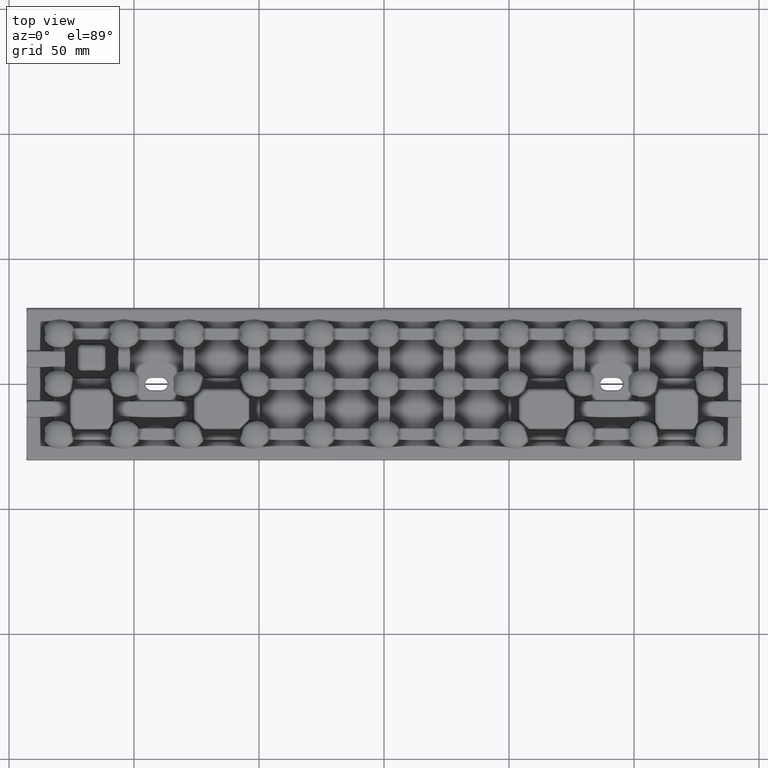
[diagram: clean part render]
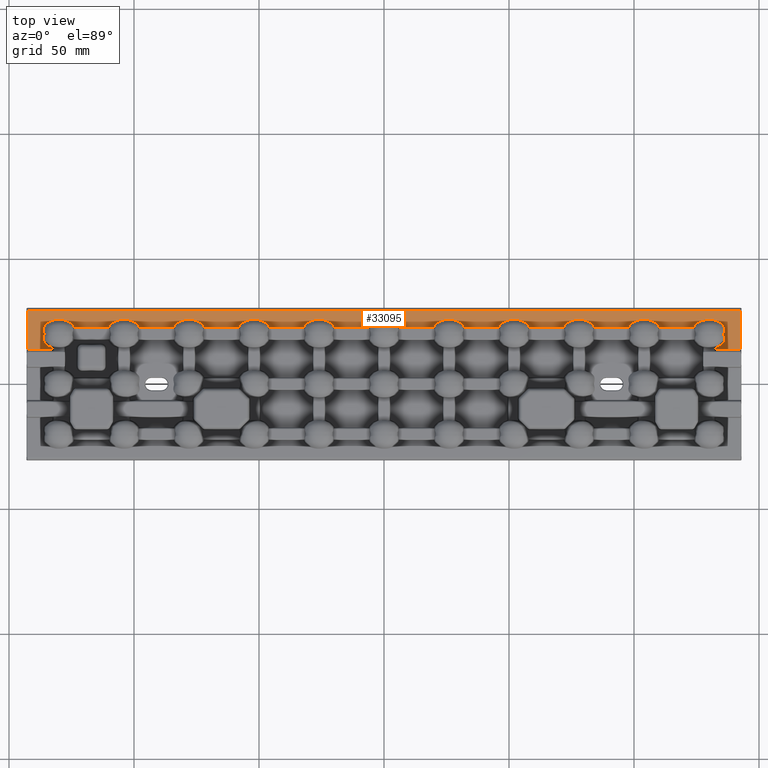
[diagram: same view with one face highlighted and labeled with its STEP entity id]
A machine part, top view. The second image highlights one B-rep face of the part: STEP entity #33095.
In plain terms, the highlighted planar face has unit normal (-0, 0, 1).
Its self-contained STEP definition (entity closure, byte-faithful):
#159 = DIRECTION ( 'NONE',  ( 1.000000000000000000, -3.844641663027053000E-016, 0.0000000000000000000 ) ) ;
#396 = CARTESIAN_POINT ( 'NONE',  ( 134.5890807931653800, 15.40667483908067800, 1.999999999999462700 ) ) ;
#418 = CARTESIAN_POINT ( 'NONE',  ( -136.2491534736721800, 18.42496305614903900, 1.999999999999801500 ) ) ;
#655 = CARTESIAN_POINT ( 'NONE',  ( 136.1422941395027800, 18.92599852830035100, 1.999999999993474100 ) ) ;
#674 = CARTESIAN_POINT ( 'NONE',  ( -133.7036661683736700, 14.90969121436089800, 2.000000000000000000 ) ) ;
#702 = CARTESIAN_POINT ( 'NONE',  ( 6.075509653499828700, 22.88562396744901800, 1.999999999999998200 ) ) ;
#829 = CARTESIAN_POINT ( 'NONE',  ( 107.8173794983486000, 25.03780424287719000, 2.000000000000000000 ) ) ;
#881 = ORIENTED_EDGE ( 'NONE', *, *, #36219, .T. ) ;
#960 = CARTESIAN_POINT ( 'NONE',  ( 2.101898965083105300, 25.64368310781740600, 2.000000000000001300 ) ) ;
#1015 = ORIENTED_EDGE ( 'NONE', *, *, #11806, .F. ) ;
#1077 = CARTESIAN_POINT ( 'NONE',  ( 101.8952171307840500, 25.64285794544110100, 2.000000000000001800 ) ) ;
#1138 = CARTESIAN_POINT ( 'NONE',  ( 132.7414221937016500, 13.77131854326629700, 2.000000000000000000 ) ) ;
#1219 = CARTESIAN_POINT ( 'NONE',  ( -3.815287526735950500, 25.03882649742065100, 1.999999999999999600 ) ) ;
#1255 = CARTESIAN_POINT ( 'NONE',  ( -128.1521017394621300, 25.70130968190581200, 1.999999999999999100 ) ) ;
#1421 = CARTESIAN_POINT ( 'NONE',  ( 82.08584800185387600, 24.90006964188271300, 1.999999999999998700 ) ) ;
#1500 = CARTESIAN_POINT ( 'NONE',  ( -135.1834138264737800, 24.13670479910281900, 2.000000000000188300 ) ) ;
#1507 = VECTOR ( 'NONE', #67939, 1000.000000000000000 ) ;
#1669 = CARTESIAN_POINT ( 'NONE',  ( 76.48413725215603200, 25.76195794472082700, 2.000000000000001300 ) ) ;
#1678 = VECTOR ( 'NONE', #159, 1000.000000000000000 ) ;
#1912 = CARTESIAN_POINT ( 'NONE',  ( 71.87528341715068300, 22.74142219370215300, 2.000000000000000000 ) ) ;
#2260 = EDGE_CURVE ( 'NONE', #65743, #44303, #62590, .T. ) ;
#2356 = CARTESIAN_POINT ( 'NONE',  ( 136.2355183708553200, 22.41646832329987800, 2.000000000000001800 ) ) ;
#2381 = CARTESIAN_POINT ( 'NONE',  ( -19.98547790453259800, 23.02461435016123300, 2.000000000000005300 ) ) ;
#2415 = CARTESIAN_POINT ( 'NONE',  ( 129.4801714825816500, 25.87062644867764000, 2.000000000000001300 ) ) ;
#2530 = LINE ( 'NONE', #45203, #17603 ) ;
#2599 = CARTESIAN_POINT ( 'NONE',  ( 131.5130212073022400, 25.78425993390715800, 2.000000000000000000 ) ) ;
#2623 = CARTESIAN_POINT ( 'NONE',  ( -24.49496288302360700, 25.76389970656171300, 2.000000000000001800 ) ) ;
#2663 = B_SPLINE_CURVE_WITH_KNOTS ( 'NONE', 3,
 ( #49878, #10018, #21431, #61338, #27191, #67038 ),
 .UNSPECIFIED., .F., .F.,
 ( 4, 2, 4 ),
 ( 0.0000000000000000000, 0.001085195773855436900, 0.002170391547710873900 ),
 .UNSPECIFIED. ) ;
#2666 = CARTESIAN_POINT ( 'NONE',  ( 123.9304156417274100, 22.90298795330230100, 2.000000000000000400 ) ) ;
#2867 = LINE ( 'NONE', #46958, #46522 ) ;
#2886 = CARTESIAN_POINT ( 'NONE',  ( -30.08417746597588800, 24.90102541659840100, 2.000000000000000000 ) ) ;
#2902 = EDGE_CURVE ( 'NONE', #65743, #33914, #60501, .T. ) ;
#3533 = B_SPLINE_CURVE_WITH_KNOTS ( 'NONE', 3,
 ( #26189, #71760, #37624, #3545, #43376, #9261, #49125, #14966, #54847, #20673, #60592, #26437, #66297, #32178, #72013, #37856, #3800, #43626, #9506, #49364, #15207, #55082, #20918, #60834, #26671, #66537, #32404, #72256, #38095, #4035, #43876, #9750, #49614, #15451, #55327, #21166 ),
 .UNSPECIFIED., .F., .F.,
 ( 4, 2, 2, 2, 2, 2, 2, 2, 2, 2, 2, 2, 2, 2, 2, 2, 2, 4 ),
 ( 0.002275996343188608800, 0.002728250509917961800, 0.003180504676647315200, 0.004085013010106021200, 0.004989521343564727200, 0.005894029677023434100, 0.006798538010482139300, 0.007703046343940846100, 0.008607554677399553000, 0.009512063010858258200, 0.01041657134431696500, 0.01132107967777567000, 0.01222558801123437700, 0.01313009634469308400, 0.01403460467815178900, 0.01493911301161049600, 0.01584362134506920100, 0.01674812967852790800 ),
 .UNSPECIFIED. ) ;
#3545 = CARTESIAN_POINT ( 'NONE',  ( 31.87143930477192600, 23.29325767552287000, 2.000000000000004400 ) ) ;
#3596 = ORIENTED_EDGE ( 'NONE', *, *, #37644, .T. ) ;
#3735 = CARTESIAN_POINT ( 'NONE',  ( -142.4984859507544300, 13.77131854326629700, 2.000000000000000000 ) ) ;
#3800 = CARTESIAN_POINT ( 'NONE',  ( 27.20471487232482100, 25.80855502716315900, 1.999999999999999600 ) ) ;
#3991 = CARTESIAN_POINT ( 'NONE',  ( 142.4984859507544300, 13.77131854326629700, 2.000000000000000000 ) ) ;
#4035 = CARTESIAN_POINT ( 'NONE',  ( 21.39877739052920100, 24.58683439160101300, 1.999999999999999600 ) ) ;
#4249 = CARTESIAN_POINT ( 'NONE',  ( 56.08584800185392500, 24.90006964188271300, 2.000000000000001300 ) ) ;
#4490 = CARTESIAN_POINT ( 'NONE',  ( 50.48413725215602500, 25.76195794472083700, 2.000000000000001300 ) ) ;
#4614 = CARTESIAN_POINT ( 'NONE',  ( -136.1422940776979300, 21.07400144673698600, 2.000000000000433900 ) ) ;
#4695 = ORIENTED_EDGE ( 'NONE', *, *, #47175, .T. ) ;
#4728 = CARTESIAN_POINT ( 'NONE',  ( 45.87528341715069000, 22.74142219370214200, 2.000000000000000000 ) ) ;
#4883 = CARTESIAN_POINT ( 'NONE',  ( 130.4999643765035800, 25.87241571720612800, 2.000000000000000400 ) ) ;
#4950 = EDGE_CURVE ( 'NONE', #64254, #33914, #32057, .T. ) ;
#5045 = VECTOR ( 'NONE', #44286, 1000.000000000000000 ) ;
#5107 = B_SPLINE_CURVE_WITH_KNOTS ( 'NONE', 3,
 ( #12004, #46144, #51902, #17684, #57612, #23460, #63326, #29191, #69013, #34885, #829, #40626, #6545, #46404, #12262, #52150, #17942, #57867, #23720, #63581, #29462, #69277, #35134, #1077, #40881, #6788, #46654, #12503, #52388, #18187, #58120, #23969, #63826, #29714, #69520, #35375 ),
 .UNSPECIFIED., .F., .F.,
 ( 4, 2, 2, 2, 2, 2, 2, 2, 2, 2, 2, 2, 2, 2, 2, 2, 2, 4 ),
 ( 0.002275996343188627400, 0.002728250509917982200, 0.003180504676647336900, 0.004085013010106037700, 0.004989521343564739400, 0.005894029677023440200, 0.006798538010482141900, 0.007703046343940843500, 0.008607554677399544300, 0.009512063010858246000, 0.01041657134431694900, 0.01132107967777564900, 0.01222558801123435100, 0.01313009634469305300, 0.01403460467815175400, 0.01493911301161045600, 0.01584362134506915600, 0.01674812967852785900 ),
 .UNSPECIFIED. ) ;
#5217 = CARTESIAN_POINT ( 'NONE',  ( 0.0000000000000000000, 13.77131854326629700, 2.000000000000000000 ) ) ;
#5281 = ORIENTED_EDGE ( 'NONE', *, *, #22242, .F. ) ;
#5458 = VERTEX_POINT ( 'NONE', #6594 ) ;
#6117 = CARTESIAN_POINT ( 'NONE',  ( 135.1988268364245600, 15.88518975005947500, 2.000000000000009800 ) ) ;
#6132 = EDGE_CURVE ( 'NONE', #64254, #36699, #45102, .T. ) ;
#6135 = CARTESIAN_POINT ( 'NONE',  ( -136.2707034396326500, 17.90558947995623700, 1.999999999999990900 ) ) ;
#6207 = LINE ( 'NONE', #16481, #48115 ) ;
#6223 = DIRECTION ( 'NONE',  ( -0.0000000000000000000, 0.0000000000000000000, 1.000000000000000000 ) ) ;
#6393 = CARTESIAN_POINT ( 'NONE',  ( -132.9870772960633500, 14.61746080869049000, 1.999999999999998700 ) ) ;
#6426 = CARTESIAN_POINT ( 'NONE',  ( 5.871439304771945100, 23.29325767552286000, 2.000000000000002700 ) ) ;
#6545 = CARTESIAN_POINT ( 'NONE',  ( 106.9760828264498300, 25.38799079489401900, 2.000000000000001300 ) ) ;
#6594 = CARTESIAN_POINT ( 'NONE',  ( 123.8752834171507400, 22.74142219370217400, 2.000000000000000000 ) ) ;
#6623 = CARTESIAN_POINT ( 'NONE',  ( 32.12471664366864100, 22.74142219370213900, 2.000000000000000000 ) ) ;
#6670 = CARTESIAN_POINT ( 'NONE',  ( 1.204714872324830700, 25.80855502716316600, 2.000000000000000900 ) ) ;
#6686 = EDGE_CURVE ( 'NONE', #50857, #36699, #27896, .T. ) ;
#6709 = CARTESIAN_POINT ( 'NONE',  ( -123.9997837736777300, 23.05681557220518800, 2.000000000000003100 ) ) ;
#6757 = DIRECTION ( 'NONE',  ( -0.0000000000000000000, 1.000000000000000000, -0.0000000000000000000 ) ) ;
#6788 = CARTESIAN_POINT ( 'NONE',  ( 101.0265017409174100, 25.38884701042959700, 2.000000000000001300 ) ) ;
#6876 = CARTESIAN_POINT ( 'NONE',  ( -110.1247165828493000, 22.74142219370216400, 2.000000000000000000 ) ) ;
#6877 = CARTESIAN_POINT ( 'NONE',  ( 84.12471664366863400, 22.74142219370215700, 2.000000000000000000 ) ) ;
#6912 = CARTESIAN_POINT ( 'NONE',  ( -4.601222609470789300, 24.58683439160102000, 1.999999999999998700 ) ) ;
#6956 = CARTESIAN_POINT ( 'NONE',  ( -129.1588840295991600, 25.84943613948347600, 2.000000000000000400 ) ) ;
#6971 = CARTESIAN_POINT ( 'NONE',  ( -110.0259199889958100, 23.03094700164174900, 1.999999999999999600 ) ) ;
#7111 = CARTESIAN_POINT ( 'NONE',  ( 81.26265101789374500, 25.28184242365429000, 1.999999999999998700 ) ) ;
#7191 = CARTESIAN_POINT ( 'NONE',  ( -135.8472069634694000, 23.36177148381003800, 2.000000000000000900 ) ) ;
#7366 = CARTESIAN_POINT ( 'NONE',  ( 75.60362999357221300, 25.56854427240505600, 2.000000000000000400 ) ) ;
#7552 = EDGE_CURVE ( 'NONE', #50857, #8288, #63859, .T. ) ;
#7648 = B_SPLINE_CURVE_WITH_KNOTS ( 'NONE', 3,
 ( #13567, #30761, #2381, #42205, #8075, #47955, #13805, #53672, #19495, #59435, #25269, #65106, #31012, #70832, #36696, #2623, #42445, #8336, #48201, #14034, #53905, #19745, #59679, #25508, #65354, #31254, #71073, #36932, #2886, #42693, #8576, #48440, #14287, #54159, #19989, #59923 ),
 .UNSPECIFIED., .F., .F.,
 ( 4, 2, 2, 2, 2, 2, 2, 2, 2, 2, 2, 2, 2, 2, 2, 2, 2, 4 ),
 ( 0.002275996343188594900, 0.002728250509917957000, 0.003180504676647319100, 0.004085013010106029000, 0.004989521343564739400, 0.005894029677023449700, 0.006798538010482160100, 0.007703046343940868700, 0.008607554677399579000, 0.009512063010858287600, 0.01041657134431699800, 0.01132107967777570800, 0.01222558801123441900, 0.01313009634469312700, 0.01403460467815183800, 0.01493911301161054600, 0.01584362134506926000, 0.01674812967852796700 ),
 .UNSPECIFIED. ) ;
#7821 = CARTESIAN_POINT ( 'NONE',  ( 84.12471664366863400, 22.74142219370215700, 2.000000000000000000 ) ) ;
#8051 = CARTESIAN_POINT ( 'NONE',  ( 135.9207969297110900, 23.20982438317930600, 1.999999999999961800 ) ) ;
#8075 = CARTESIAN_POINT ( 'NONE',  ( -20.21128215373953600, 23.42357442482896700, 2.000000000000050600 ) ) ;
#8123 = CARTESIAN_POINT ( 'NONE',  ( 128.1427242334093000, 25.71911605654116100, 1.999999999999998700 ) ) ;
#8128 = ORIENTED_EDGE ( 'NONE', *, *, #17101, .F. ) ;
#8278 = VERTEX_POINT ( 'NONE', #30082 ) ;
#8288 = VERTEX_POINT ( 'NONE', #30415 ) ;
#8317 = CARTESIAN_POINT ( 'NONE',  ( -71.87528335633136600, 22.74142219370214900, 2.000000000000000000 ) ) ;
#8336 = CARTESIAN_POINT ( 'NONE',  ( -25.39986127050814000, 25.86574220998206300, 1.999999999999998200 ) ) ;
#8576 = CARTESIAN_POINT ( 'NONE',  ( -30.85149305031011500, 24.40868959467559300, 2.000000000000000900 ) ) ;
#8919 = CARTESIAN_POINT ( 'NONE',  ( 110.1247166436686300, 22.74142219370216700, 2.000000000000000000 ) ) ;
#9168 = CARTESIAN_POINT ( 'NONE',  ( -109.8807292245431300, 23.29753420550875700, 2.000000000000000400 ) ) ;
#9261 = CARTESIAN_POINT ( 'NONE',  ( 31.51931745544805400, 23.79182352437914000, 2.000000000000049700 ) ) ;
#9506 = CARTESIAN_POINT ( 'NONE',  ( 26.29543700606077600, 25.87784888434081800, 1.999999999999999100 ) ) ;
#9750 = CARTESIAN_POINT ( 'NONE',  ( 20.68991674022577200, 24.01117280352592000, 1.999999999999999600 ) ) ;
#9975 = CARTESIAN_POINT ( 'NONE',  ( 55.26265101789378100, 25.28184242365429300, 2.000000000000001300 ) ) ;
#10018 = CARTESIAN_POINT ( 'NONE',  ( 136.0389785876765200, 20.72345487119043400, 1.999999999992750200 ) ) ;
#10209 = CARTESIAN_POINT ( 'NONE',  ( 49.60362999357221300, 25.56854427240504500, 2.000000000000000400 ) ) ;
#10640 = ORIENTED_EDGE ( 'NONE', *, *, #27424, .T. ) ;
#10719 = CARTESIAN_POINT ( 'NONE',  ( -109.3100832597742500, 24.01117280352593800, 2.000000000000001300 ) ) ;
#10808 = DIRECTION ( 'NONE',  ( 0.0000000000000000000, -1.000000000000000000, 0.0000000000000000000 ) ) ;
#11008 = CARTESIAN_POINT ( 'NONE',  ( -84.12471658284931700, 22.74142219370215300, 2.000000000000000000 ) ) ;
#11090 = CARTESIAN_POINT ( 'NONE',  ( -84.02591998899582400, 23.03094700164176000, 1.999999999999999600 ) ) ;
#11169 = CARTESIAN_POINT ( 'NONE',  ( -8.743261924239526700E-015, 22.74142219370212500, 2.000000000000000000 ) ) ;
#11193 = CARTESIAN_POINT ( 'NONE',  ( -83.88072922454310300, 23.29753420550876100, 2.000000000000000400 ) ) ;
#11198 = CARTESIAN_POINT ( 'NONE',  ( -109.5192150365958100, 23.79222974334703600, 2.000000000000000400 ) ) ;
#11341 = CARTESIAN_POINT ( 'NONE',  ( -83.51921503659578100, 23.79222974334705000, 2.000000000000000000 ) ) ;
#11354 = CARTESIAN_POINT ( 'NONE',  ( -83.31008325977423100, 24.01117280352593800, 2.000000000000000000 ) ) ;
#11445 = CARTESIAN_POINT ( 'NONE',  ( -82.85149305031009700, 24.40868959467560400, 2.000000000000000000 ) ) ;
#11583 = CARTESIAN_POINT ( 'NONE',  ( -82.60122260947073900, 24.58683439160104500, 2.000000000000001300 ) ) ;
#11596 = CARTESIAN_POINT ( 'NONE',  ( -82.08417746597582700, 24.90102541659842900, 2.000000000000001300 ) ) ;
#11725 = ORIENTED_EDGE ( 'NONE', *, *, #2260, .F. ) ;
#11806 = EDGE_CURVE ( 'NONE', #68119, #8288, #7648, .T. ) ;
#11830 = CARTESIAN_POINT ( 'NONE',  ( -81.81528752673592900, 25.03882649742065800, 2.000000000000000900 ) ) ;
#11843 = CARTESIAN_POINT ( 'NONE',  ( 135.7193098480832100, 16.46446374168947800, 2.000000000000000000 ) ) ;
#11849 = CARTESIAN_POINT ( 'NONE',  ( -81.26046079917900000, 25.28270322200916100, 2.000000000000001300 ) ) ;
#11862 = CARTESIAN_POINT ( 'NONE',  ( -136.0976086484952200, 17.14721611102858700, 2.000000000000000400 ) ) ;
#11884 = VERTEX_POINT ( 'NONE', #20969 ) ;
#12004 = CARTESIAN_POINT ( 'NONE',  ( 110.1247166436686300, 22.74142219370216700, 2.000000000000000000 ) ) ;
#12076 = CARTESIAN_POINT ( 'NONE',  ( -80.97349825908261800, 25.38884701042957900, 2.000000000000000400 ) ) ;
#12093 = CARTESIAN_POINT ( 'NONE',  ( -80.39637000642775900, 25.56854427240504200, 2.000000000000000400 ) ) ;
#12139 = CARTESIAN_POINT ( 'NONE',  ( 5.519317455448063300, 23.79182352437913300, 2.000000000000049700 ) ) ;
#12174 = CARTESIAN_POINT ( 'NONE',  ( -80.10478286921595300, 25.64285794544110100, 1.999999999999999600 ) ) ;
#12192 = CARTESIAN_POINT ( 'NONE',  ( -79.51586274784392600, 25.76195794472084800, 1.999999999999999600 ) ) ;
#12262 = CARTESIAN_POINT ( 'NONE',  ( 106.1018989650830500, 25.64368310781742000, 2.000000000000001800 ) ) ;
#12278 = CARTESIAN_POINT ( 'NONE',  ( -79.21851775567371600, 25.80668256297308400, 2.000000000000000000 ) ) ;
#12334 = CARTESIAN_POINT ( 'NONE',  ( -78.61769566497977700, 25.86461950329276500, 2.000000000000000000 ) ) ;
#12350 = CARTESIAN_POINT ( 'NONE',  ( -78.31328421717691400, 25.87737867770246700, 2.000000000000000000 ) ) ;
#12394 = CARTESIAN_POINT ( 'NONE',  ( 0.2954370060607898200, 25.87784888434084600, 2.000000000000000900 ) ) ;
#12422 = CARTESIAN_POINT ( 'NONE',  ( -77.70456299393917700, 25.87784888434079600, 2.000000000000000400 ) ) ;
#12429 = CARTESIAN_POINT ( 'NONE',  ( -124.2608153143488900, 23.49716492353521600, 2.000000000000123900 ) ) ;
#12436 = CARTESIAN_POINT ( 'NONE',  ( -77.39986127050811100, 25.86574220998207000, 1.999999999999998700 ) ) ;
#12503 = CARTESIAN_POINT ( 'NONE',  ( 100.1847124732640900, 25.03882649742067200, 2.000000000000000400 ) ) ;
#12595 = CARTESIAN_POINT ( 'NONE',  ( -76.79528512767517200, 25.80855502716314800, 1.999999999999998700 ) ) ;
#12600 = CARTESIAN_POINT ( 'NONE',  ( 84.07550965349982200, 22.88562396744904200, 1.999999999999999100 ) ) ;
#12642 = CARTESIAN_POINT ( 'NONE',  ( -5.310083259774225800, 24.01117280352590900, 2.000000000000000000 ) ) ;
#12674 = CARTESIAN_POINT ( 'NONE',  ( -76.49496288302356100, 25.76389970656171600, 2.000000000000000000 ) ) ;
#12679 = CARTESIAN_POINT ( 'NONE',  ( -130.1774081296666700, 25.88141769561063700, 2.000000000000000400 ) ) ;
#12824 = CARTESIAN_POINT ( 'NONE',  ( -75.89810103491687700, 25.64368310781741300, 2.000000000000000400 ) ) ;
#12840 = CARTESIAN_POINT ( 'NONE',  ( -74.18262050165137100, 25.03780424287719000, 2.000000000000001300 ) ) ;
#12845 = CARTESIAN_POINT ( 'NONE',  ( 80.39643692765388000, 25.56857466250402000, 1.999999999999999100 ) ) ;
#12919 = CARTESIAN_POINT ( 'NONE',  ( -73.91415199814606800, 24.90006964188269800, 2.000000000000000000 ) ) ;
#12928 = CARTESIAN_POINT ( 'NONE',  ( -136.1292586559661100, 22.74502588051533900, 1.999999999999992200 ) ) ;
#13072 = CARTESIAN_POINT ( 'NONE',  ( -73.39866481870598100, 24.58670644603917700, 2.000000000000000000 ) ) ;
#13083 = CARTESIAN_POINT ( 'NONE',  ( -136.0389785313406600, 19.27654514606715000, 2.000000000000179000 ) ) ;
#13085 = CARTESIAN_POINT ( 'NONE',  ( -73.14984179067012300, 24.40979810255903000, 2.000000000000000400 ) ) ;
#13094 = CARTESIAN_POINT ( 'NONE',  ( 74.73953920082095700, 25.28270322200914700, 1.999999999999998700 ) ) ;
#13158 = CARTESIAN_POINT ( 'NONE',  ( -72.68944266396461300, 24.01081039900179100, 2.000000000000000400 ) ) ;
#13177 = CARTESIAN_POINT ( 'NONE',  ( -108.8514930503101000, 24.40868959467560700, 2.000000000000000900 ) ) ;
#13398 = CARTESIAN_POINT ( 'NONE',  ( -72.48068254455193900, 23.79182352437914400, 2.000000000000049300 ) ) ;
#13553 = CARTESIAN_POINT ( 'NONE',  ( -72.21128215373951800, 23.42357442482898500, 2.000000000000049300 ) ) ;
#13567 = CARTESIAN_POINT ( 'NONE',  ( -19.87528335633135200, 22.74142219370212800, 2.000000000000000000 ) ) ;
#13643 = CARTESIAN_POINT ( 'NONE',  ( -72.12856069522808900, 23.29325767552288400, 2.000000000000003100 ) ) ;
#13676 = EDGE_CURVE ( 'NONE', #68119, #69890, #2867, .T. ) ;
#13763 = VERTEX_POINT ( 'NONE', #7821 ) ;
#13780 = CARTESIAN_POINT ( 'NONE',  ( 135.6366535071507300, 23.63564552775093500, 2.000000000000019500 ) ) ;
#13789 = CARTESIAN_POINT ( 'NONE',  ( -71.87528335633136600, 22.74142219370214900, 2.000000000000000000 ) ) ;
#13805 = CARTESIAN_POINT ( 'NONE',  ( -20.68944266396459900, 24.01081039900179400, 2.000000000000000000 ) ) ;
#13809 = CARTESIAN_POINT ( 'NONE',  ( -108.6012226094708000, 24.58683439160101600, 2.000000000000000400 ) ) ;
#13840 = CARTESIAN_POINT ( 'NONE',  ( 126.5357682004881200, 25.20055981314031600, 2.000000000000000900 ) ) ;
#13944 = DIRECTION ( 'NONE',  ( 1.000000000000000000, 3.844641663027053000E-016, 0.0000000000000000000 ) ) ;
#14023 = CARTESIAN_POINT ( 'NONE',  ( -71.92449034650019300, 22.88562396744904200, 1.999999999999998700 ) ) ;
#14034 = CARTESIAN_POINT ( 'NONE',  ( -26.31328421717702100, 25.87737867770244200, 2.000000000000001300 ) ) ;
#14036 = CARTESIAN_POINT ( 'NONE',  ( -71.98547790453261500, 23.02461435016126500, 2.000000000000002700 ) ) ;
#14287 = CARTESIAN_POINT ( 'NONE',  ( -31.51921503659582100, 23.79222974334702200, 2.000000000000000900 ) ) ;
#14351 = VERTEX_POINT ( 'NONE', #3991 ) ;
#14966 = CARTESIAN_POINT ( 'NONE',  ( 30.85015820932989400, 24.40979810255904100, 2.000000000000000400 ) ) ;
#15207 = CARTESIAN_POINT ( 'NONE',  ( 25.38230433502018400, 25.86461950329276500, 1.999999999999999100 ) ) ;
#15401 = CARTESIAN_POINT ( 'NONE',  ( -142.4984859507544300, 0.0000000000000000000, 2.000000000000000000 ) ) ;
#15429 = CARTESIAN_POINT ( 'NONE',  ( 58.07550965349981500, 22.88562396744903500, 1.999999999999996200 ) ) ;
#15451 = CARTESIAN_POINT ( 'NONE',  ( 20.11927077545687600, 23.29753420550874000, 2.000000000000000400 ) ) ;
#15510 = CARTESIAN_POINT ( 'NONE',  ( -107.8152875267359300, 25.03882649742064700, 2.000000000000000000 ) ) ;
#15601 = CARTESIAN_POINT ( 'NONE',  ( -107.2604607991789900, 25.28270322200914300, 2.000000000000000400 ) ) ;
#15672 = CARTESIAN_POINT ( 'NONE',  ( 54.39643692765393000, 25.56857466250402700, 2.000000000000000400 ) ) ;
#15740 = CARTESIAN_POINT ( 'NONE',  ( -123.8752833563313500, 22.74142219370217100, 2.000000000000000000 ) ) ;
#15908 = CARTESIAN_POINT ( 'NONE',  ( 48.73953920082097800, 25.28270322200915400, 2.000000000000001300 ) ) ;
#15909 = VECTOR ( 'NONE', #72552, 1000.000000000000000 ) ;
#16481 = CARTESIAN_POINT ( 'NONE',  ( 132.7414221937016500, 0.0000000000000000000, 2.000000000000000000 ) ) ;
#16495 = CARTESIAN_POINT ( 'NONE',  ( -58.12471658284932400, 22.74142219370214200, 2.000000000000000000 ) ) ;
#16851 = DIRECTION ( 'NONE',  ( 1.000000000000000000, 3.844641663027053000E-016, 0.0000000000000000000 ) ) ;
#16925 = ORIENTED_EDGE ( 'NONE', *, *, #6686, .F. ) ;
#16944 = ORIENTED_EDGE ( 'NONE', *, *, #58437, .T. ) ;
#17035 = CARTESIAN_POINT ( 'NONE',  ( -106.9734982590826000, 25.38884701042957900, 2.000000000000000400 ) ) ;
#17079 = CARTESIAN_POINT ( 'NONE',  ( -58.12471658284932400, 22.74142219370214200, 2.000000000000000000 ) ) ;
#17101 = EDGE_CURVE ( 'NONE', #59364, #69890, #24023, .T. ) ;
#17139 = CARTESIAN_POINT ( 'NONE',  ( -58.02591998899578800, 23.03094700164172400, 1.999999999999999600 ) ) ;
#17221 = CARTESIAN_POINT ( 'NONE',  ( -57.88072922454313100, 23.29753420550872900, 2.000000000000000400 ) ) ;
#17379 = CARTESIAN_POINT ( 'NONE',  ( -57.51921503659582400, 23.79222974334701800, 2.000000000000000000 ) ) ;
#17488 = CARTESIAN_POINT ( 'NONE',  ( -84.12471658284931700, 22.74142219370215300, 2.000000000000000000 ) ) ;
#17517 = CARTESIAN_POINT ( 'NONE',  ( 136.0962294656004900, 17.14447868008417700, 1.999999999999918100 ) ) ;
#17536 = CARTESIAN_POINT ( 'NONE',  ( -135.7222697216204200, 16.46824341382454900, 2.000000000000001800 ) ) ;
#17603 = VECTOR ( 'NONE', #39174, 1000.000000000000000 ) ;
#17631 = CARTESIAN_POINT ( 'NONE',  ( -57.31008325977422400, 24.01117280352590900, 2.000000000000000000 ) ) ;
#17684 = CARTESIAN_POINT ( 'NONE',  ( 109.8714393047719000, 23.29325767552289200, 2.000000000000003100 ) ) ;
#17717 = CARTESIAN_POINT ( 'NONE',  ( -56.85149305031011100, 24.40868959467559000, 2.000000000000000400 ) ) ;
#17819 = CARTESIAN_POINT ( 'NONE',  ( 4.850158209329909400, 24.40979810255902300, 1.999999999999999600 ) ) ;
#17942 = CARTESIAN_POINT ( 'NONE',  ( 105.2047148723248300, 25.80855502716315200, 2.000000000000000000 ) ) ;
#17976 = CARTESIAN_POINT ( 'NONE',  ( -56.60122260947081700, 24.58683439160100200, 1.999999999999999600 ) ) ;
#18075 = CARTESIAN_POINT ( 'NONE',  ( -0.6176956649798029900, 25.86461950329276100, 2.000000000000000000 ) ) ;
#18117 = CARTESIAN_POINT ( 'NONE',  ( -124.8165026251769200, 24.13431372534995100, 2.000000000000004000 ) ) ;
#18187 = CARTESIAN_POINT ( 'NONE',  ( 99.39877739052920400, 24.58683439160103400, 2.000000000000000000 ) ) ;
#18217 = CARTESIAN_POINT ( 'NONE',  ( -56.08417746597588400, 24.90102541659838700, 1.999999999999999100 ) ) ;
#18274 = CARTESIAN_POINT ( 'NONE',  ( 84.01452209546737000, 23.02461435016126500, 2.000000000000006200 ) ) ;
#18307 = CARTESIAN_POINT ( 'NONE',  ( -55.81528752673597900, 25.03882649742064400, 2.000000000000000900 ) ) ;
#18321 = CARTESIAN_POINT ( 'NONE',  ( -5.880729224543127700, 23.29753420550872200, 1.999999999999999600 ) ) ;
#18353 = CARTESIAN_POINT ( 'NONE',  ( -131.5252392006906900, 25.78192378973378100, 2.000000000000001300 ) ) ;
#18380 = CARTESIAN_POINT ( 'NONE',  ( -55.26046079917904300, 25.28270322200914300, 2.000000000000000900 ) ) ;
#18430 = VECTOR ( 'NONE', #16851, 1000.000000000000000 ) ;
#18532 = CARTESIAN_POINT ( 'NONE',  ( 79.50503711697638200, 25.76389970656170900, 2.000000000000001300 ) ) ;
#18608 = CARTESIAN_POINT ( 'NONE',  ( -136.2470301624737800, 22.24955103308036200, 1.999999999999999600 ) ) ;
#18743 = ORIENTED_EDGE ( 'NONE', *, *, #7552, .T. ) ;
#18778 = CARTESIAN_POINT ( 'NONE',  ( -106.3963700064277900, 25.56854427240504200, 2.000000000000000900 ) ) ;
#18779 = CARTESIAN_POINT ( 'NONE',  ( 73.91582253402415900, 24.90102541659843300, 2.000000000000000900 ) ) ;
#18813 = CARTESIAN_POINT ( 'NONE',  ( -54.97349825908263200, 25.38884701042957900, 2.000000000000000900 ) ) ;
#18827 = CARTESIAN_POINT ( 'NONE',  ( -54.39637000642780900, 25.56854427240503500, 2.000000000000001300 ) ) ;
#18887 = CARTESIAN_POINT ( 'NONE',  ( -54.10478286921599500, 25.64285794544108700, 2.000000000000000400 ) ) ;
#18898 = ORIENTED_EDGE ( 'NONE', *, *, #34476, .F. ) ;
#18931 = VECTOR ( 'NONE', #64743, 1000.000000000000000 ) ;
#18941 = CARTESIAN_POINT ( 'NONE',  ( 136.1422941395027800, 18.92599852830035100, 1.999999999993474100 ) ) ;
#18974 = CARTESIAN_POINT ( 'NONE',  ( -53.51586274784397500, 25.76195794472084100, 2.000000000000000400 ) ) ;
#19081 = CARTESIAN_POINT ( 'NONE',  ( 136.1422941395030100, 21.07400147169966000, 1.999999999992750700 ) ) ;
#19133 = CARTESIAN_POINT ( 'NONE',  ( -53.21851775567381500, 25.80668256297307300, 1.999999999999999600 ) ) ;
#19217 = CARTESIAN_POINT ( 'NONE',  ( -52.61769566497987700, 25.86461950329275400, 1.999999999999999600 ) ) ;
#19314 = CARTESIAN_POINT ( 'NONE',  ( -52.31328421717699200, 25.87737867770247400, 2.000000000000000000 ) ) ;
#19370 = CARTESIAN_POINT ( 'NONE',  ( -51.70456299393925500, 25.87784888434081400, 2.000000000000000000 ) ) ;
#19452 = CARTESIAN_POINT ( 'NONE',  ( -51.39986127050812600, 25.86574220998207400, 2.000000000000000400 ) ) ;
#19478 = CARTESIAN_POINT ( 'NONE',  ( 135.1837506405433700, 24.13635086363880000, 1.999999999999999100 ) ) ;
#19495 = CARTESIAN_POINT ( 'NONE',  ( -21.39866481870598500, 24.58670644603918400, 2.000000000000000000 ) ) ;
#19533 = CARTESIAN_POINT ( 'NONE',  ( -50.79528512767520700, 25.80855502716317000, 2.000000000000000000 ) ) ;
#19534 = CARTESIAN_POINT ( 'NONE',  ( 125.6347281434112500, 24.74037055286132500, 2.000000000000001300 ) ) ;
#19548 = CARTESIAN_POINT ( 'NONE',  ( -50.49496288302362500, 25.76389970656171600, 2.000000000000000400 ) ) ;
#19608 = CARTESIAN_POINT ( 'NONE',  ( -49.89810103491694100, 25.64368310781742400, 2.000000000000000000 ) ) ;
#19646 = EDGE_CURVE ( 'NONE', #59364, #49429, #52337, .T. ) ;
#19684 = ORIENTED_EDGE ( 'NONE', *, *, #70409, .F. ) ;
#19695 = CARTESIAN_POINT ( 'NONE',  ( -49.60356307234609800, 25.56857466250402000, 2.000000000000000400 ) ) ;
#19745 = CARTESIAN_POINT ( 'NONE',  ( -27.21851775567380100, 25.80668256297307300, 2.000000000000000400 ) ) ;
#19753 = CARTESIAN_POINT ( 'NONE',  ( 8.743261924239526700E-015, 22.74142219370212100, 2.000000000000000000 ) ) ;
#19777 = CARTESIAN_POINT ( 'NONE',  ( -49.02391717355021700, 25.38799079489400200, 2.000000000000000400 ) ) ;
#19937 = CARTESIAN_POINT ( 'NONE',  ( -48.73734898210624100, 25.28184242365430000, 2.000000000000001300 ) ) ;
#19989 = CARTESIAN_POINT ( 'NONE',  ( -32.02591998899577400, 23.03094700164173900, 1.999999999999999600 ) ) ;
#20026 = CARTESIAN_POINT ( 'NONE',  ( -48.18262050165140000, 25.03780424287719000, 2.000000000000000900 ) ) ;
#20266 = CARTESIAN_POINT ( 'NONE',  ( -47.91415199814608200, 24.90006964188270900, 1.999999999999998700 ) ) ;
#20473 = EDGE_CURVE ( 'NONE', #29222, #49429, #3533, .T. ) ;
#20502 = CARTESIAN_POINT ( 'NONE',  ( -47.39866481870598800, 24.58670644603918700, 1.999999999999998200 ) ) ;
#20673 = CARTESIAN_POINT ( 'NONE',  ( 30.08584800185392200, 24.90006964188270200, 1.999999999999998700 ) ) ;
#20684 = CARTESIAN_POINT ( 'NONE',  ( -47.14984179067011600, 24.40979810255903700, 2.000000000000000900 ) ) ;
#20918 = CARTESIAN_POINT ( 'NONE',  ( 24.48413725215605300, 25.76195794472082300, 1.999999999999999100 ) ) ;
#20923 = CARTESIAN_POINT ( 'NONE',  ( -46.68944266396461300, 24.01081039900179800, 2.000000000000001300 ) ) ;
#20969 = CARTESIAN_POINT ( 'NONE',  ( 58.12471664366866300, 22.74142219370214600, 2.000000000000000000 ) ) ;
#21006 = CARTESIAN_POINT ( 'NONE',  ( -46.48068254455194600, 23.79182352437914000, 2.000000000000049300 ) ) ;
#21139 = CARTESIAN_POINT ( 'NONE',  ( 58.01452209546739900, 23.02461435016124400, 2.000000000000004900 ) ) ;
#21166 = CARTESIAN_POINT ( 'NONE',  ( 19.87528341715071200, 22.74142219370213200, 2.000000000000000000 ) ) ;
#21175 = CARTESIAN_POINT ( 'NONE',  ( -46.21128215373952500, 23.42357442482898100, 2.000000000000049300 ) ) ;
#21258 = CARTESIAN_POINT ( 'NONE',  ( -136.1422940776980400, 18.92599855326297100, 2.000000000000179400 ) ) ;
#21261 = CARTESIAN_POINT ( 'NONE',  ( -46.12856069522804600, 23.29325767552287000, 2.000000000000004000 ) ) ;
#21274 = CARTESIAN_POINT ( 'NONE',  ( -45.87528335633134400, 22.74142219370213900, 2.000000000000000000 ) ) ;
#21394 = CARTESIAN_POINT ( 'NONE',  ( 53.50503711697639600, 25.76389970656170900, 2.000000000000001300 ) ) ;
#21431 = CARTESIAN_POINT ( 'NONE',  ( 135.9868449588244300, 20.36549532177972200, 2.000000000000000000 ) ) ;
#21637 = CARTESIAN_POINT ( 'NONE',  ( 47.91582253402414400, 24.90102541659841500, 2.000000000000001300 ) ) ;
#21807 = CARTESIAN_POINT ( 'NONE',  ( -105.5158627478439300, 25.76195794472084400, 1.999999999999999100 ) ) ;
#21834 = CARTESIAN_POINT ( 'NONE',  ( -45.92449034650016400, 22.88562396744902800, 1.999999999999995800 ) ) ;
#22242 = EDGE_CURVE ( 'NONE', #66179, #67972, #41396, .T. ) ;
#22379 = CARTESIAN_POINT ( 'NONE',  ( -105.2185177556737600, 25.80668256297308400, 2.000000000000000900 ) ) ;
#22381 = CARTESIAN_POINT ( 'NONE',  ( 45.87528341715069000, 22.74142219370214200, 2.000000000000000000 ) ) ;
#23026 = CARTESIAN_POINT ( 'NONE',  ( 133.2282148343141200, 14.69437390599491000, 1.999999999999992200 ) ) ;
#23046 = CARTESIAN_POINT ( 'NONE',  ( -136.1422940776980400, 18.92599855326297100, 2.000000000000179400 ) ) ;
#23113 = B_SPLINE_CURVE_WITH_KNOTS ( 'NONE', 3,
 ( #64846, #25012, #30736, #70572, #36427, #2356, #42186, #8051, #47933, #13780, #53649, #19478, #59410, #25249, #65080, #30986, #70812, #36671, #2599, #4883, #67854, #2415, #42243, #8123, #48001, #13840, #53712, #19534, #59470, #25312, #65148, #31052, #70873, #36730, #2666, #42486 ),
 .UNSPECIFIED., .F., .F.,
 ( 4, 2, 2, 2, 2, 2, 2, 2, 2, 2, 2, 2, 2, 2, 2, 2, 2, 4 ),
 ( 0.0005961375090279718500, 0.001100887264324829400, 0.001605637019621687100, 0.002615136530215402500, 0.003119886285512260200, 0.003624636040809117900, 0.004634135551402840200, 0.005643635061996563400, 0.006653134572590285700, 0.008672133593777813600, 0.009681633104371619200, 0.01069113261496542500, 0.01271013163615295400, 0.01371963114674672000, 0.01472913065734048400, 0.01573863016793428500, 0.01624337992323116700, 0.01674812967852805000 ),
 .UNSPECIFIED. ) ;
#23290 = CARTESIAN_POINT ( 'NONE',  ( 136.2278325243345900, 17.64327522075632300, 1.999999999999932500 ) ) ;
#23306 = CARTESIAN_POINT ( 'NONE',  ( -135.2064932326284200, 15.89244861315259200, 2.000000000000000400 ) ) ;
#23460 = CARTESIAN_POINT ( 'NONE',  ( 109.5193174554480200, 23.79182352437914700, 2.000000000000049700 ) ) ;
#23596 = CARTESIAN_POINT ( 'NONE',  ( 4.085848001853938700, 24.90006964188269500, 1.999999999999998700 ) ) ;
#23610 = EDGE_CURVE ( 'NONE', #29222, #27779, #27151, .T. ) ;
#23720 = CARTESIAN_POINT ( 'NONE',  ( 104.2954370060607500, 25.87784888434081400, 2.000000000000000000 ) ) ;
#23850 = CARTESIAN_POINT ( 'NONE',  ( -1.515862747843937700, 25.76195794472083400, 1.999999999999999600 ) ) ;
#23890 = CARTESIAN_POINT ( 'NONE',  ( -125.6337414917158800, 24.73973250436201400, 2.000000000000001300 ) ) ;
#23901 = CARTESIAN_POINT ( 'NONE',  ( -104.6176956649798300, 25.86461950329277200, 2.000000000000001300 ) ) ;
#23969 = CARTESIAN_POINT ( 'NONE',  ( 98.68991674022582600, 24.01117280352594800, 2.000000000000000400 ) ) ;
#24023 = B_SPLINE_CURVE_WITH_KNOTS ( 'NONE', 3,
 ( #34760, #702, #40503, #6426, #46281, #12139, #52029, #17819, #57746, #23596, #63458, #29334, #69146, #35015, #960, #40754, #6670, #46540, #12394, #52280, #18075, #57999, #23850, #63707, #29601, #69400, #35265, #1219, #41026, #6912, #46784, #12642, #52513, #18321, #58251, #24104 ),
 .UNSPECIFIED., .F., .F.,
 ( 4, 2, 2, 2, 2, 2, 2, 2, 2, 2, 2, 2, 2, 2, 2, 2, 2, 4 ),
 ( 0.002275996343188598800, 0.002728250509917954000, 0.003180504676647309200, 0.004085013010106013400, 0.004989521343564716800, 0.005894029677023420200, 0.006798538010482123700, 0.007703046343940827100, 0.008607554677399532200, 0.009512063010858235600, 0.01041657134431693900, 0.01132107967777564200, 0.01222558801123434600, 0.01313009634469304900, 0.01403460467815175300, 0.01493911301161045600, 0.01584362134506915900, 0.01674812967852785900 ),
 .UNSPECIFIED. ) ;
#24053 = CARTESIAN_POINT ( 'NONE',  ( 83.78871784626045400, 23.42357442482899200, 2.000000000000049700 ) ) ;
#24104 = CARTESIAN_POINT ( 'NONE',  ( -6.124716582849310400, 22.74142219370212500, 2.000000000000000000 ) ) ;
#24141 = CARTESIAN_POINT ( 'NONE',  ( -133.1448014293494300, 25.32815511208414700, 1.999999999999999100 ) ) ;
#24323 = CARTESIAN_POINT ( 'NONE',  ( 78.60013872949186000, 25.86574220998206600, 2.000000000000001300 ) ) ;
#24383 = EDGE_CURVE ( 'NONE', #11884, #27779, #60561, .T. ) ;
#24397 = CARTESIAN_POINT ( 'NONE',  ( -136.2661771475476700, 21.74135571872668000, 1.999999999999998700 ) ) ;
#24566 = CARTESIAN_POINT ( 'NONE',  ( 73.14850694968991700, 24.40868959467560000, 2.000000000000000900 ) ) ;
#24650 = CARTESIAN_POINT ( 'NONE',  ( -74.73734898210625500, 25.28184242365429000, 2.000000000000001300 ) ) ;
#24657 = CARTESIAN_POINT ( 'NONE',  ( -104.3132842171769900, 25.87737867770244500, 2.000000000000000000 ) ) ;
#24805 = CARTESIAN_POINT ( 'NONE',  ( -103.7045629939392300, 25.87784888434083200, 2.000000000000000000 ) ) ;
#24816 = VERTEX_POINT ( 'NONE', #15740 ) ;
#24897 = AXIS2_PLACEMENT_3D ( 'NONE', #68695, #6223, #46075 ) ;
#25012 = CARTESIAN_POINT ( 'NONE',  ( 136.1898608585489400, 21.23539393745196300, 2.000000000000001300 ) ) ;
#25028 = ORIENTED_EDGE ( 'NONE', *, *, #55047, .F. ) ;
#25102 = ORIENTED_EDGE ( 'NONE', *, *, #72379, .T. ) ;
#25154 = EDGE_CURVE ( 'NONE', #11884, #8278, #69653, .T. ) ;
#25158 = CARTESIAN_POINT ( 'NONE',  ( -45.87528335633134400, 22.74142219370213900, 2.000000000000000000 ) ) ;
#25249 = CARTESIAN_POINT ( 'NONE',  ( 134.3645729755712900, 24.74211788836412800, 2.000000000000000900 ) ) ;
#25269 = CARTESIAN_POINT ( 'NONE',  ( -22.18262050165138500, 25.03780424287718300, 2.000000000000001300 ) ) ;
#25312 = CARTESIAN_POINT ( 'NONE',  ( 124.8158551762984000, 24.13367435333977400, 2.000000000000001300 ) ) ;
#25508 = CARTESIAN_POINT ( 'NONE',  ( -28.10478286921599500, 25.64285794544107900, 2.000000000000001300 ) ) ;
#25607 = CARTESIAN_POINT ( 'NONE',  ( -103.3998612705081500, 25.86574220998206600, 1.999999999999999600 ) ) ;
#25652 = CARTESIAN_POINT ( 'NONE',  ( -132.7414221937016500, 14.53910680023594400, 2.000000000000000000 ) ) ;
#25676 = CARTESIAN_POINT ( 'NONE',  ( -97.87528335633138000, 22.74142219370216000, 2.000000000000000000 ) ) ;
#25906 = EDGE_CURVE ( 'NONE', #13763, #8278, #42146, .T. ) ;
#26101 = CARTESIAN_POINT ( 'NONE',  ( -102.7952851276752300, 25.80855502716316300, 2.000000000000000000 ) ) ;
#26189 = CARTESIAN_POINT ( 'NONE',  ( 32.12471664366864100, 22.74142219370213900, 2.000000000000000000 ) ) ;
#26412 = CARTESIAN_POINT ( 'NONE',  ( 58.12471664366866300, 22.74142219370214600, 2.000000000000000000 ) ) ;
#26437 = CARTESIAN_POINT ( 'NONE',  ( 29.26265101789378100, 25.28184242365429000, 2.000000000000000400 ) ) ;
#26474 = CARTESIAN_POINT ( 'NONE',  ( -75.60356307234606300, 25.56857466250401600, 1.999999999999999600 ) ) ;
#26671 = CARTESIAN_POINT ( 'NONE',  ( 23.60362999357223000, 25.56854427240505200, 2.000000000000000400 ) ) ;
#26769 = ORIENTED_EDGE ( 'NONE', *, *, #4950, .F. ) ;
#26896 = CARTESIAN_POINT ( 'NONE',  ( 57.78871784626048900, 23.42357442482898500, 2.000000000000049700 ) ) ;
#27076 = CARTESIAN_POINT ( 'NONE',  ( -101.8981010349168600, 25.64368310781740200, 2.000000000000001300 ) ) ;
#27149 = CARTESIAN_POINT ( 'NONE',  ( 52.60013872949185300, 25.86574220998205900, 2.000000000000000400 ) ) ;
#27151 = LINE ( 'NONE', #55236, #70811 ) ;
#27191 = CARTESIAN_POINT ( 'NONE',  ( 136.0389785945272600, 19.27654510555689900, 2.000000000000000000 ) ) ;
#27235 = CARTESIAN_POINT ( 'NONE',  ( -102.4949628830235600, 25.76389970656170500, 2.000000000000001800 ) ) ;
#27389 = CARTESIAN_POINT ( 'NONE',  ( 47.14850694968991000, 24.40868959467559000, 2.000000000000000400 ) ) ;
#27424 = EDGE_CURVE ( 'NONE', #66179, #34005, #6207, .T. ) ;
#27438 = DIRECTION ( 'NONE',  ( -0.0000000000000000000, 1.000000000000000000, -0.0000000000000000000 ) ) ;
#27698 = VERTEX_POINT ( 'NONE', #43623 ) ;
#27779 = VERTEX_POINT ( 'NONE', #22381 ) ;
#27896 = B_SPLINE_CURVE_WITH_KNOTS ( 'NONE', 3,
 ( #21274, #21834, #49455, #21261, #21175, #21006, #20923, #20684, #20502, #20266, #20026, #19937, #19777, #19695, #19608, #19548, #19533, #19452, #19370, #19314, #19217, #19133, #18974, #18887, #18827, #18813, #18380, #18307, #18217, #17976, #17717, #17631, #17379, #17221, #17139, #17079 ),
 .UNSPECIFIED., .F., .F.,
 ( 4, 2, 2, 2, 2, 2, 2, 2, 2, 2, 2, 2, 2, 2, 2, 2, 2, 4 ),
 ( 0.002275996343188608400, 0.002728250509917962700, 0.003180504676647317400, 0.004085013010106026400, 0.004989521343564735900, 0.005894029677023444500, 0.006798538010482153100, 0.007703046343940862600, 0.008607554677399572100, 0.009512063010858280700, 0.01041657134431698900, 0.01132107967777569800, 0.01222558801123440800, 0.01313009634469311700, 0.01403460467815182500, 0.01493911301161053600, 0.01584362134506924600, 0.01674812967852795300 ),
 .UNSPECIFIED. ) ;
#28286 = CARTESIAN_POINT ( 'NONE',  ( -101.6035630723460900, 25.56857466250401600, 2.000000000000000000 ) ) ;
#28782 = CARTESIAN_POINT ( 'NONE',  ( 132.7414221937016500, 14.53910680610566800, 2.000000000000000000 ) ) ;
#29027 = CARTESIAN_POINT ( 'NONE',  ( 136.2676170527116700, 18.03128758575087400, 1.999999999999986700 ) ) ;
#29046 = CARTESIAN_POINT ( 'NONE',  ( -134.5964790662918600, 15.41167551327747300, 2.000000000000048000 ) ) ;
#29191 = CARTESIAN_POINT ( 'NONE',  ( 108.8501582093298900, 24.40979810255906900, 2.000000000000001800 ) ) ;
#29222 = VERTEX_POINT ( 'NONE', #6623 ) ;
#29334 = CARTESIAN_POINT ( 'NONE',  ( 3.262651017893791300, 25.28184242365427500, 1.999999999999999600 ) ) ;
#29381 = CARTESIAN_POINT ( 'NONE',  ( -123.8752833563313500, 22.74142219370217100, 2.000000000000000000 ) ) ;
#29462 = CARTESIAN_POINT ( 'NONE',  ( 103.3823043350201700, 25.86461950329276500, 2.000000000000000000 ) ) ;
#29562 = CARTESIAN_POINT ( 'NONE',  ( -101.0239171735502300, 25.38799079489400900, 2.000000000000000900 ) ) ;
#29598 = ORIENTED_EDGE ( 'NONE', *, *, #24383, .F. ) ;
#29601 = CARTESIAN_POINT ( 'NONE',  ( -2.396370006427769500, 25.56854427240505600, 2.000000000000001300 ) ) ;
#29637 = CARTESIAN_POINT ( 'NONE',  ( -126.5340818966850500, 25.19982535176263000, 2.000000000000000900 ) ) ;
#29714 = CARTESIAN_POINT ( 'NONE',  ( 98.11927077545685400, 23.29753420550876800, 1.999999999999999600 ) ) ;
#29797 = CARTESIAN_POINT ( 'NONE',  ( 83.31055733603534500, 24.01081039900182300, 2.000000000000000900 ) ) ;
#29877 = CARTESIAN_POINT ( 'NONE',  ( -134.0704075121875900, 24.90951804684106500, 1.999999999999999600 ) ) ;
#29947 = EDGE_CURVE ( 'NONE', #34005, #14351, #32862, .T. ) ;
#30044 = CARTESIAN_POINT ( 'NONE',  ( 77.68671578282302900, 25.87737867770245600, 1.999999999999999600 ) ) ;
#30082 = CARTESIAN_POINT ( 'NONE',  ( 71.87528341715068300, 22.74142219370215300, 2.000000000000000000 ) ) ;
#30118 = CARTESIAN_POINT ( 'NONE',  ( -136.1903296996105400, 21.23698489103294300, 1.999999999999999600 ) ) ;
#30271 = CARTESIAN_POINT ( 'NONE',  ( -135.9868454775444800, 20.36550122177484600, 2.000000000000000000 ) ) ;
#30279 = CARTESIAN_POINT ( 'NONE',  ( 72.48078496340419000, 23.79222974334704000, 2.000000000000000400 ) ) ;
#30415 = CARTESIAN_POINT ( 'NONE',  ( -32.12471658284931000, 22.74142219370213500, 2.000000000000000000 ) ) ;
#30528 = CARTESIAN_POINT ( 'NONE',  ( -100.7373489821062400, 25.28184242365428600, 2.000000000000000900 ) ) ;
#30736 = CARTESIAN_POINT ( 'NONE',  ( 136.2251899547918300, 21.40027928130110300, 1.999999999999972200 ) ) ;
#30761 = CARTESIAN_POINT ( 'NONE',  ( -19.92449034650017800, 22.88562396744901400, 1.999999999999997800 ) ) ;
#30986 = CARTESIAN_POINT ( 'NONE',  ( 133.4643834707806300, 25.20099454993902200, 2.000000000000000000 ) ) ;
#31012 = CARTESIAN_POINT ( 'NONE',  ( -23.02391717355022000, 25.38799079489401600, 2.000000000000000000 ) ) ;
#31019 = CARTESIAN_POINT ( 'NONE',  ( -99.91415199814608200, 24.90006964188270900, 2.000000000000000900 ) ) ;
#31026 = EDGE_CURVE ( 'NONE', #13763, #65719, #2530, .T. ) ;
#31052 = CARTESIAN_POINT ( 'NONE',  ( 124.2595882292661100, 23.49550296467400700, 2.000000000000005300 ) ) ;
#31254 = CARTESIAN_POINT ( 'NONE',  ( -28.97349825908263200, 25.38884701042958300, 2.000000000000000900 ) ) ;
#31548 = VECTOR ( 'NONE', #6757, 1000.000000000000000 ) ;
#31997 = LINE ( 'NONE', #33145, #58756 ) ;
#32057 = B_SPLINE_CURVE_WITH_KNOTS ( 'NONE', 3,
 ( #13789, #14023, #14036, #13643, #13553, #13398, #13158, #13085, #13072, #12919, #12840, #24650, #45242, #26474, #12824, #12674, #12595, #12436, #12422, #12350, #12334, #12278, #12192, #12174, #12093, #12076, #11849, #11830, #11596, #11583, #11445, #11354, #11341, #11193, #11090, #11008 ),
 .UNSPECIFIED., .F., .F.,
 ( 4, 2, 2, 2, 2, 2, 2, 2, 2, 2, 2, 2, 2, 2, 2, 2, 2, 4 ),
 ( 0.002275996343188620100, 0.002728250509917969600, 0.003180504676647319100, 0.004085013010106017800, 0.004989521343564716800, 0.005894029677023415900, 0.006798538010482115000, 0.007703046343940813200, 0.008607554677399513100, 0.009512063010858211300, 0.01041657134431691100, 0.01132107967777560900, 0.01222558801123430900, 0.01313009634469300800, 0.01403460467815170800, 0.01493911301161040600, 0.01584362134506910400, 0.01674812967852780400 ),
 .UNSPECIFIED. ) ;
#32178 = CARTESIAN_POINT ( 'NONE',  ( 28.39643692765390900, 25.56857466250400500, 1.999999999999998700 ) ) ;
#32404 = CARTESIAN_POINT ( 'NONE',  ( 22.73953920082098500, 25.28270322200914700, 2.000000000000000000 ) ) ;
#32464 = CARTESIAN_POINT ( 'NONE',  ( -100.1826205016513900, 25.03780424287718600, 2.000000000000000900 ) ) ;
#32616 = CARTESIAN_POINT ( 'NONE',  ( 57.31055733603538700, 24.01081039900180900, 2.000000000000000400 ) ) ;
#32861 = CARTESIAN_POINT ( 'NONE',  ( 51.68671578282302200, 25.87737867770246000, 2.000000000000000000 ) ) ;
#32862 = LINE ( 'NONE', #38384, #15909 ) ;
#33094 = CARTESIAN_POINT ( 'NONE',  ( 46.48078496340419000, 23.79222974334702200, 2.000000000000001300 ) ) ;
#33095 = ADVANCED_FACE ( 'NONE', ( #70971 ), #40304, .T. ) ;
#33145 = CARTESIAN_POINT ( 'NONE',  ( -132.7414221937016500, 0.0000000000000000000, 2.000000000000000000 ) ) ;
#33494 = LINE ( 'NONE', #5217, #1507 ) ;
#33559 = LINE ( 'NONE', #11169, #18430 ) ;
#33637 = VERTEX_POINT ( 'NONE', #19081 ) ;
#33914 = VERTEX_POINT ( 'NONE', #17488 ) ;
#34005 = VERTEX_POINT ( 'NONE', #1138 ) ;
#34013 = VERTEX_POINT ( 'NONE', #40947 ) ;
#34020 = ORIENTED_EDGE ( 'NONE', *, *, #41044, .T. ) ;
#34461 = CARTESIAN_POINT ( 'NONE',  ( 134.3693825953014600, 15.26637053028121500, 2.000000000000001300 ) ) ;
#34474 = CARTESIAN_POINT ( 'NONE',  ( -106.1047828692159700, 25.64285794544109000, 1.999999999999999600 ) ) ;
#34476 = EDGE_CURVE ( 'NONE', #52905, #65719, #5107, .T. ) ;
#34484 = CARTESIAN_POINT ( 'NONE',  ( -136.2074829077699000, 18.67874981392211700, 1.999999999999800600 ) ) ;
#34704 = CARTESIAN_POINT ( 'NONE',  ( 136.2159641498783500, 18.67603836992195800, 1.999999999999998700 ) ) ;
#34725 = CARTESIAN_POINT ( 'NONE',  ( -133.9340473854844000, 15.02213694033561200, 2.000000000000000400 ) ) ;
#34760 = CARTESIAN_POINT ( 'NONE',  ( 6.124716643668653800, 22.74142219370212800, 2.000000000000000000 ) ) ;
#34885 = CARTESIAN_POINT ( 'NONE',  ( 108.0858480018538800, 24.90006964188269100, 2.000000000000000000 ) ) ;
#35015 = CARTESIAN_POINT ( 'NONE',  ( 2.396436927653927000, 25.56857466250400500, 2.000000000000000000 ) ) ;
#35134 = CARTESIAN_POINT ( 'NONE',  ( 102.4841372521560600, 25.76195794472083700, 2.000000000000001300 ) ) ;
#35265 = CARTESIAN_POINT ( 'NONE',  ( -3.260460799179012900, 25.28270322200915700, 2.000000000000000000 ) ) ;
#35303 = CARTESIAN_POINT ( 'NONE',  ( -127.4936494200826500, 25.53894666800996300, 1.999999999999999600 ) ) ;
#35337 = VECTOR ( 'NONE', #40150, 1000.000000000000000 ) ;
#35375 = CARTESIAN_POINT ( 'NONE',  ( 97.87528341715068300, 22.74142219370216400, 2.000000000000000000 ) ) ;
#35466 = CARTESIAN_POINT ( 'NONE',  ( -99.14984179067016600, 24.40979810255905500, 2.000000000000003100 ) ) ;
#35467 = CARTESIAN_POINT ( 'NONE',  ( 82.60133518129400400, 24.58670644603919800, 1.999999999999998700 ) ) ;
#35553 = CARTESIAN_POINT ( 'NONE',  ( -134.9211706629983800, 24.35593040061450400, 2.000000000000079000 ) ) ;
#35717 = CARTESIAN_POINT ( 'NONE',  ( 76.78148224432622700, 25.80668256297307300, 2.000000000000000400 ) ) ;
#35955 = CARTESIAN_POINT ( 'NONE',  ( -136.1422940776979300, 21.07400144673698600, 2.000000000000433900 ) ) ;
#35965 = CARTESIAN_POINT ( 'NONE',  ( 71.97408001100421900, 23.03094700164174600, 2.000000000000000400 ) ) ;
#36213 = CARTESIAN_POINT ( 'NONE',  ( -98.68944266396467000, 24.01081039900182300, 2.000000000000003100 ) ) ;
#36219 = EDGE_CURVE ( 'NONE', #14351, #34013, #60081, .T. ) ;
#36427 = CARTESIAN_POINT ( 'NONE',  ( 136.2708788479543800, 21.91032279607789600, 2.000000000000001300 ) ) ;
#36671 = CARTESIAN_POINT ( 'NONE',  ( 132.1820311154946000, 25.64624235797493400, 1.999999999999997800 ) ) ;
#36696 = CARTESIAN_POINT ( 'NONE',  ( -23.89810103491692000, 25.64368310781741300, 2.000000000000000400 ) ) ;
#36699 = VERTEX_POINT ( 'NONE', #16495 ) ;
#36730 = CARTESIAN_POINT ( 'NONE',  ( 124.0000322378129500, 23.05720795068677400, 1.999999999999999100 ) ) ;
#36932 = CARTESIAN_POINT ( 'NONE',  ( -29.81528752673597900, 25.03882649742064400, 2.000000000000000000 ) ) ;
#37128 = LINE ( 'NONE', #62871, #35337 ) ;
#37624 = CARTESIAN_POINT ( 'NONE',  ( 32.01452209546740600, 23.02461435016124700, 2.000000000000004400 ) ) ;
#37644 = EDGE_CURVE ( 'NONE', #34013, #27698, #45693, .T. ) ;
#37761 = CARTESIAN_POINT ( 'NONE',  ( 6.124716643668653800, 22.74142219370212800, 2.000000000000000000 ) ) ;
#37856 = CARTESIAN_POINT ( 'NONE',  ( 27.50503711697642100, 25.76389970656172000, 2.000000000000000900 ) ) ;
#38095 = CARTESIAN_POINT ( 'NONE',  ( 21.91582253402413400, 24.90102541659841500, 1.999999999999999600 ) ) ;
#38316 = CARTESIAN_POINT ( 'NONE',  ( 56.60133518129401200, 24.58670644603919100, 2.000000000000000900 ) ) ;
#38336 = CARTESIAN_POINT ( 'NONE',  ( -98.21128215373954600, 23.42357442482900300, 2.000000000000050600 ) ) ;
#38384 = CARTESIAN_POINT ( 'NONE',  ( 0.0000000000000000000, 13.77131854326629700, 2.000000000000000000 ) ) ;
#38572 = CARTESIAN_POINT ( 'NONE',  ( 50.78148224432621300, 25.80668256297308400, 2.000000000000000400 ) ) ;
#38808 = CARTESIAN_POINT ( 'NONE',  ( 45.97408001100421900, 23.03094700164174200, 2.000000000000001300 ) ) ;
#39174 = DIRECTION ( 'NONE',  ( 1.000000000000000000, 3.844641663027053000E-016, 0.0000000000000000000 ) ) ;
#39311 = ORIENTED_EDGE ( 'NONE', *, *, #23610, .T. ) ;
#39469 = CARTESIAN_POINT ( 'NONE',  ( -98.12856069522808900, 23.29325767552288800, 2.000000000000003100 ) ) ;
#39551 = CARTESIAN_POINT ( 'NONE',  ( -97.98547790453260100, 23.02461435016126900, 2.000000000000003600 ) ) ;
#40150 = DIRECTION ( 'NONE',  ( 1.000000000000000000, -3.844641663027053000E-016, 0.0000000000000000000 ) ) ;
#40208 = CARTESIAN_POINT ( 'NONE',  ( 135.0037674660888200, 15.71630448506376800, 1.999999999999462700 ) ) ;
#40222 = CARTESIAN_POINT ( 'NONE',  ( -136.2617692709982900, 18.29459632493069400, 1.999999999999990900 ) ) ;
#40304 = PLANE ( 'NONE',  #24897 ) ;
#40472 = CARTESIAN_POINT ( 'NONE',  ( -133.2304776266955200, 14.70739173823323000, 1.999999999999999600 ) ) ;
#40503 = CARTESIAN_POINT ( 'NONE',  ( 6.014522095467412100, 23.02461435016123700, 2.000000000000003600 ) ) ;
#40626 = CARTESIAN_POINT ( 'NONE',  ( 107.2626510178937900, 25.28184242365429000, 2.000000000000000000 ) ) ;
#40754 = CARTESIAN_POINT ( 'NONE',  ( 1.505037116976422500, 25.76389970656170900, 2.000000000000001300 ) ) ;
#40829 = EDGE_CURVE ( 'NONE', #27698, #53588, #69273, .T. ) ;
#40881 = CARTESIAN_POINT ( 'NONE',  ( 101.6036299935722400, 25.56854427240506000, 2.000000000000001800 ) ) ;
#40947 = CARTESIAN_POINT ( 'NONE',  ( 142.4984859507544300, 29.17765049216839300, 2.000000000000000000 ) ) ;
#41026 = CARTESIAN_POINT ( 'NONE',  ( -4.084177465975858300, 24.90102541659840800, 1.999999999999998700 ) ) ;
#41044 = EDGE_CURVE ( 'NONE', #52905, #5458, #33559, .T. ) ;
#41062 = CARTESIAN_POINT ( 'NONE',  ( -128.4867805242857300, 25.76397037756439100, 2.000000000000000400 ) ) ;
#41251 = CARTESIAN_POINT ( 'NONE',  ( 81.81737949834861500, 25.03780424287718600, 1.999999999999999100 ) ) ;
#41324 = CARTESIAN_POINT ( 'NONE',  ( -135.6446668319441400, 23.64242492569157200, 2.000000000000188700 ) ) ;
#41396 = B_SPLINE_CURVE_WITH_KNOTS ( 'NONE', 3,
 ( #28782, #23026, #57195, #34461, #396, #40208, #6117, #45975, #11843, #51730, #17517, #57441, #23290, #63152, #29027, #68841, #34704, #655 ),
 .UNSPECIFIED., .F., .F.,
 ( 4, 2, 2, 2, 2, 2, 2, 2, 4 ),
 ( 0.01225064876170033100, 0.01378397203531952900, 0.01455063367212909200, 0.01531729530893865400, 0.01608395694574821600, 0.01685061858255777800, 0.01723394940096254600, 0.01761728021936731500, 0.01838394185617684600 ),
 .UNSPECIFIED. ) ;
#41482 = CARTESIAN_POINT ( 'NONE',  ( 75.89521713078400500, 25.64285794544109400, 2.000000000000000400 ) ) ;
#42041 = EDGE_CURVE ( 'NONE', #53588, #56903, #33494, .T. ) ;
#42052 = B_SPLINE_CURVE_WITH_KNOTS ( 'NONE', 3,
 ( #29381, #63498, #6709, #46575, #12429, #52317, #18117, #58038, #23890, #63749, #29637, #69439, #35303, #1255, #41062, #6956, #46819, #12679, #52552, #18353, #58283, #24141, #63991, #29877, #69693, #35553, #1500, #41324, #7191, #47054, #12928, #52803, #18608, #58520, #24397, #64230, #30118, #69931 ),
 .UNSPECIFIED., .F., .F.,
 ( 4, 2, 2, 2, 2, 2, 2, 2, 2, 2, 2, 2, 2, 2, 2, 2, 2, 2, 4 ),
 ( 0.002275996343188639100, 0.002780745778955538400, 0.003285495214722438000, 0.004294994086256236400, 0.005304492957790066900, 0.006313991829323897500, 0.007323490700857728000, 0.008332989572391560200, 0.009342488443925390700, 0.01035198731545922100, 0.01237098505852688400, 0.01338048393006071300, 0.01438998280159454500, 0.01539948167312837600, 0.01640898054466220400, 0.01691372998042912600, 0.01741847941619604700, 0.01792322885196296800, 0.01842797828772989000 ),
 .UNSPECIFIED. ) ;
#42146 = B_SPLINE_CURVE_WITH_KNOTS ( 'NONE', 3,
 ( #6877, #12600, #18274, #58213, #24053, #63912, #29797, #69608, #35467, #1421, #41251, #7111, #46977, #12845, #52724, #18532, #58436, #24323, #64146, #30044, #69851, #35717, #1669, #41482, #7366, #47218, #13094, #52973, #18779, #58688, #24566, #64406, #30279, #70105, #35965, #1912 ),
 .UNSPECIFIED., .F., .F.,
 ( 4, 2, 2, 2, 2, 2, 2, 2, 2, 2, 2, 2, 2, 2, 2, 2, 2, 4 ),
 ( 0.002275996343188638700, 0.002728250509917993000, 0.003180504676647347300, 0.004085013010106055900, 0.004989521343564764500, 0.005894029677023473200, 0.006798538010482181800, 0.007703046343940890400, 0.008607554677399598100, 0.009512063010858308500, 0.01041657134431701500, 0.01132107967777572600, 0.01222558801123443300, 0.01313009634469314300, 0.01403460467815185000, 0.01493911301161056000, 0.01584362134506926700, 0.01674812967852797700 ),
 .UNSPECIFIED. ) ;
#42186 = CARTESIAN_POINT ( 'NONE',  ( 136.1423770346253500, 22.75214154298075500, 1.999999999999961800 ) ) ;
#42205 = CARTESIAN_POINT ( 'NONE',  ( -20.12856069522807400, 23.29325767552287400, 2.000000000000006200 ) ) ;
#42243 = CARTESIAN_POINT ( 'NONE',  ( 129.1423872277582900, 25.84787336955918100, 1.999999999999999600 ) ) ;
#42445 = CARTESIAN_POINT ( 'NONE',  ( -24.79528512767521100, 25.80855502716316600, 1.999999999999999600 ) ) ;
#42486 = CARTESIAN_POINT ( 'NONE',  ( 123.8752834171507400, 22.74142219370217400, 2.000000000000000000 ) ) ;
#42693 = CARTESIAN_POINT ( 'NONE',  ( -30.60122260947081000, 24.58683439160101600, 2.000000000000000000 ) ) ;
#43108 = CARTESIAN_POINT ( 'NONE',  ( -19.87528335633135200, 22.74142219370212800, 2.000000000000000000 ) ) ;
#43285 = CARTESIAN_POINT ( 'NONE',  ( -99.39866481870603800, 24.58670644603919800, 2.000000000000000900 ) ) ;
#43376 = CARTESIAN_POINT ( 'NONE',  ( 31.78871784626047900, 23.42357442482898500, 2.000000000000049300 ) ) ;
#43623 = CARTESIAN_POINT ( 'NONE',  ( -142.4984859507544300, 29.17765049216839300, 2.000000000000000000 ) ) ;
#43626 = CARTESIAN_POINT ( 'NONE',  ( 26.60013872949188900, 25.86574220998205900, 1.999999999999999600 ) ) ;
#43876 = CARTESIAN_POINT ( 'NONE',  ( 21.14850694968990700, 24.40868959467559700, 1.999999999999999100 ) ) ;
#43877 = ORIENTED_EDGE ( 'NONE', *, *, #31026, .T. ) ;
#44035 = DIRECTION ( 'NONE',  ( 1.000000000000000000, 3.844641663027053000E-016, 0.0000000000000000000 ) ) ;
#44096 = CARTESIAN_POINT ( 'NONE',  ( 55.81737949834860800, 25.03780424287719300, 2.000000000000000900 ) ) ;
#44286 = DIRECTION ( 'NONE',  ( 1.000000000000000000, 3.844641663027053000E-016, 0.0000000000000000000 ) ) ;
#44303 = VERTEX_POINT ( 'NONE', #63883 ) ;
#44334 = CARTESIAN_POINT ( 'NONE',  ( 49.89521713078400500, 25.64285794544108700, 2.000000000000000400 ) ) ;
#44423 = EDGE_CURVE ( 'NONE', #33637, #5458, #23113, .T. ) ;
#44523 = ORIENTED_EDGE ( 'NONE', *, *, #29947, .T. ) ;
#44824 = CARTESIAN_POINT ( 'NONE',  ( 97.87528341715068300, 22.74142219370216400, 2.000000000000000000 ) ) ;
#45102 = LINE ( 'NONE', #56155, #71816 ) ;
#45203 = CARTESIAN_POINT ( 'NONE',  ( -8.743261924239526700E-015, 22.74142219370212500, 2.000000000000000000 ) ) ;
#45242 = CARTESIAN_POINT ( 'NONE',  ( -75.02391717355017400, 25.38799079489399400, 1.999999999999999100 ) ) ;
#45693 = LINE ( 'NONE', #47822, #18931 ) ;
#45762 = VERTEX_POINT ( 'NONE', #4614 ) ;
#45975 = CARTESIAN_POINT ( 'NONE',  ( 135.5571382490336400, 16.25939339621359600, 2.000000000000009800 ) ) ;
#45992 = CARTESIAN_POINT ( 'NONE',  ( -136.2389101807882200, 17.64995279821488700, 2.000000000000000000 ) ) ;
#46075 = DIRECTION ( 'NONE',  ( 1.000000000000000000, 0.0000000000000000000, 0.0000000000000000000 ) ) ;
#46144 = CARTESIAN_POINT ( 'NONE',  ( 110.0755096534998200, 22.88562396744905700, 1.999999999999998700 ) ) ;
#46225 = CARTESIAN_POINT ( 'NONE',  ( 132.7414221937016500, 14.53910680610566800, 2.000000000000000000 ) ) ;
#46242 = CARTESIAN_POINT ( 'NONE',  ( -97.87528335633138000, 22.74142219370216000, 2.000000000000000000 ) ) ;
#46250 = CARTESIAN_POINT ( 'NONE',  ( -132.7414221937016500, 14.53910680023594400, 2.000000000000000000 ) ) ;
#46281 = CARTESIAN_POINT ( 'NONE',  ( 5.788717846260484900, 23.42357442482897100, 2.000000000000050200 ) ) ;
#46404 = CARTESIAN_POINT ( 'NONE',  ( 106.3964369276539200, 25.56857466250401600, 2.000000000000001300 ) ) ;
#46467 = ORIENTED_EDGE ( 'NONE', *, *, #13676, .T. ) ;
#46484 = VERTEX_POINT ( 'NONE', #25652 ) ;
#46522 = VECTOR ( 'NONE', #69591, 1000.000000000000000 ) ;
#46540 = CARTESIAN_POINT ( 'NONE',  ( 0.6001387294918993900, 25.86574220998204500, 2.000000000000000900 ) ) ;
#46575 = CARTESIAN_POINT ( 'NONE',  ( -124.1649326987466400, 23.35422719709755100, 2.000000000000003600 ) ) ;
#46626 = CARTESIAN_POINT ( 'NONE',  ( 142.4984859507544300, 0.0000000000000000000, 2.000000000000000000 ) ) ;
#46654 = CARTESIAN_POINT ( 'NONE',  ( 100.7395392008210600, 25.28270322200917200, 2.000000000000000900 ) ) ;
#46784 = CARTESIAN_POINT ( 'NONE',  ( -4.851493050310096100, 24.40868959467559300, 2.000000000000000400 ) ) ;
#46819 = CARTESIAN_POINT ( 'NONE',  ( -129.4980903145273900, 25.87147453427899500, 2.000000000000000000 ) ) ;
#46958 = CARTESIAN_POINT ( 'NONE',  ( 8.743261924239526700E-015, 22.74142219370212100, 2.000000000000000000 ) ) ;
#46977 = CARTESIAN_POINT ( 'NONE',  ( 80.97608282644976900, 25.38799079489400200, 1.999999999999999100 ) ) ;
#47054 = CARTESIAN_POINT ( 'NONE',  ( -136.0682446042354700, 22.90529293210445500, 2.000000000000000900 ) ) ;
#47175 = EDGE_CURVE ( 'NONE', #33637, #67972, #2663, .T. ) ;
#47218 = CARTESIAN_POINT ( 'NONE',  ( 75.02650174091738200, 25.38884701042959000, 1.999999999999999600 ) ) ;
#47633 = CARTESIAN_POINT ( 'NONE',  ( 8.743261924239526700E-015, 22.74142219370212100, 2.000000000000000000 ) ) ;
#47822 = CARTESIAN_POINT ( 'NONE',  ( -142.8847614606772000, 29.17765049216839300, 2.000000000000000000 ) ) ;
#47933 = CARTESIAN_POINT ( 'NONE',  ( 135.8325920328522300, 23.35755012512630600, 2.000000000000020000 ) ) ;
#47955 = CARTESIAN_POINT ( 'NONE',  ( -20.48068254455195400, 23.79182352437912600, 2.000000000000050200 ) ) ;
#48001 = CARTESIAN_POINT ( 'NONE',  ( 127.4905217448602500, 25.56010240735807700, 2.000000000000001300 ) ) ;
#48115 = VECTOR ( 'NONE', #10808, 1000.000000000000000 ) ;
#48201 = CARTESIAN_POINT ( 'NONE',  ( -25.70456299393925900, 25.87784888434083500, 2.000000000000000400 ) ) ;
#48315 = ORIENTED_EDGE ( 'NONE', *, *, #25906, .F. ) ;
#48384 = ORIENTED_EDGE ( 'NONE', *, *, #44423, .F. ) ;
#48440 = CARTESIAN_POINT ( 'NONE',  ( -31.31008325977424500, 24.01117280352590600, 2.000000000000000900 ) ) ;
#48702 = VECTOR ( 'NONE', #50419, 1000.000000000000000 ) ;
#49042 = ORIENTED_EDGE ( 'NONE', *, *, #40829, .T. ) ;
#49125 = CARTESIAN_POINT ( 'NONE',  ( 31.31055733603539800, 24.01081039900180200, 2.000000000000000900 ) ) ;
#49364 = CARTESIAN_POINT ( 'NONE',  ( 25.68671578282301500, 25.87737867770245600, 1.999999999999999600 ) ) ;
#49429 = VERTEX_POINT ( 'NONE', #55899 ) ;
#49455 = CARTESIAN_POINT ( 'NONE',  ( -45.98547790453258700, 23.02461435016124400, 2.000000000000004900 ) ) ;
#49560 = DIRECTION ( 'NONE',  ( 0.0000000000000000000, -1.000000000000000000, 0.0000000000000000000 ) ) ;
#49614 = CARTESIAN_POINT ( 'NONE',  ( 20.48078496340419700, 23.79222974334703600, 2.000000000000000400 ) ) ;
#49835 = CARTESIAN_POINT ( 'NONE',  ( 54.97608282644979700, 25.38799079489400900, 2.000000000000000400 ) ) ;
#49878 = CARTESIAN_POINT ( 'NONE',  ( 136.1422941395030100, 21.07400147169966000, 1.999999999992750700 ) ) ;
#50079 = CARTESIAN_POINT ( 'NONE',  ( 49.02650174091737500, 25.38884701042956800, 2.000000000000000000 ) ) ;
#50411 = CARTESIAN_POINT ( 'NONE',  ( -97.92449034650022100, 22.88562396744906000, 1.999999999999997300 ) ) ;
#50419 = DIRECTION ( 'NONE',  ( 1.000000000000000000, -3.844641663027053000E-016, 0.0000000000000000000 ) ) ;
#50857 = VERTEX_POINT ( 'NONE', #25158 ) ;
#51151 = B_SPLINE_CURVE_WITH_KNOTS ( 'NONE', 3,
 ( #52965, #13083, #64396, #30271, #70096, #35955 ),
 .UNSPECIFIED., .F., .F.,
 ( 4, 2, 4 ),
 ( 0.0000000000000000000, 0.001085195747919708100, 0.002170391495839416200 ),
 .UNSPECIFIED. ) ;
#51546 = EDGE_CURVE ( 'NONE', #56903, #46484, #31997, .T. ) ;
#51730 = CARTESIAN_POINT ( 'NONE',  ( 135.9875288773235700, 16.90402220197023200, 2.000000000000000400 ) ) ;
#51756 = CARTESIAN_POINT ( 'NONE',  ( -135.9917490843460300, 16.91203831608475000, 2.000000000000001300 ) ) ;
#51902 = CARTESIAN_POINT ( 'NONE',  ( 110.0145220954673700, 23.02461435016126900, 2.000000000000003100 ) ) ;
#51934 = B_SPLINE_CURVE_WITH_KNOTS ( 'NONE', 3,
 ( #23046, #68616, #34484, #418, #40222, #6135, #45992, #11862, #51756, #17536, #57463, #23306, #63175, #29046, #68862, #34725, #674, #40472, #6393, #46250 ),
 .UNSPECIFIED., .F., .F.,
 ( 4, 2, 2, 2, 2, 2, 2, 2, 2, 4 ),
 ( 0.0005957444063413115600, 0.0009792573374338311800, 0.001362770268526350800, 0.002129796130711392000, 0.002896821992896433400, 0.003663847855081474800, 0.004430873717266515400, 0.005197899579451557700, 0.005964925441636598200, 0.006731951303821639600 ),
 .UNSPECIFIED. ) ;
#52029 = CARTESIAN_POINT ( 'NONE',  ( 5.310557336035413900, 24.01081039900180200, 2.000000000000000400 ) ) ;
#52150 = CARTESIAN_POINT ( 'NONE',  ( 105.5050371169764000, 25.76389970656171600, 2.000000000000002700 ) ) ;
#52280 = CARTESIAN_POINT ( 'NONE',  ( -0.3132842171769660300, 25.87737867770244500, 2.000000000000000400 ) ) ;
#52317 = CARTESIAN_POINT ( 'NONE',  ( -124.5727934172250700, 23.89787782810447000, 2.000000000000123500 ) ) ;
#52337 = LINE ( 'NONE', #72673, #5045 ) ;
#52388 = CARTESIAN_POINT ( 'NONE',  ( 99.91582253402414400, 24.90102541659842200, 2.000000000000000400 ) ) ;
#52513 = CARTESIAN_POINT ( 'NONE',  ( -5.519215036595805500, 23.79222974334701800, 1.999999999999999100 ) ) ;
#52552 = CARTESIAN_POINT ( 'NONE',  ( -130.5179456155989000, 25.87146490793556800, 2.000000000000001300 ) ) ;
#52724 = CARTESIAN_POINT ( 'NONE',  ( 80.10189896508308000, 25.64368310781742400, 2.000000000000002200 ) ) ;
#52763 = ORIENTED_EDGE ( 'NONE', *, *, #20473, .F. ) ;
#52803 = CARTESIAN_POINT ( 'NONE',  ( -136.2188377549440200, 22.41595420809256500, 1.999999999999992200 ) ) ;
#52905 = VERTEX_POINT ( 'NONE', #8919 ) ;
#52965 = CARTESIAN_POINT ( 'NONE',  ( -136.1422940776980400, 18.92599855326297100, 2.000000000000179400 ) ) ;
#52973 = CARTESIAN_POINT ( 'NONE',  ( 74.18471247326400000, 25.03882649742064700, 1.999999999999998200 ) ) ;
#53588 = VERTEX_POINT ( 'NONE', #3735 ) ;
#53649 = CARTESIAN_POINT ( 'NONE',  ( 135.5292434236605200, 23.76610951145808300, 1.999999999999998200 ) ) ;
#53672 = CARTESIAN_POINT ( 'NONE',  ( -21.14984179067010200, 24.40979810255904100, 2.000000000000000000 ) ) ;
#53712 = CARTESIAN_POINT ( 'NONE',  ( 126.2274449331426600, 25.06189554801201400, 2.000000000000000900 ) ) ;
#53905 = CARTESIAN_POINT ( 'NONE',  ( -26.61769566497984100, 25.86461950329275100, 2.000000000000000000 ) ) ;
#54001 = VERTEX_POINT ( 'NONE', #21258 ) ;
#54159 = CARTESIAN_POINT ( 'NONE',  ( -31.88072922454313800, 23.29753420550872900, 2.000000000000000900 ) ) ;
#54544 = VECTOR ( 'NONE', #13944, 1000.000000000000000 ) ;
#54847 = CARTESIAN_POINT ( 'NONE',  ( 30.60133518129400800, 24.58670644603918400, 1.999999999999998700 ) ) ;
#55047 = EDGE_CURVE ( 'NONE', #54001, #46484, #51934, .T. ) ;
#55082 = CARTESIAN_POINT ( 'NONE',  ( 24.78148224432622400, 25.80668256297308700, 1.999999999999999600 ) ) ;
#55236 = CARTESIAN_POINT ( 'NONE',  ( -8.743261924239526700E-015, 22.74142219370212500, 2.000000000000000000 ) ) ;
#55327 = CARTESIAN_POINT ( 'NONE',  ( 19.97408001100421500, 23.03094700164173500, 2.000000000000001300 ) ) ;
#55556 = CARTESIAN_POINT ( 'NONE',  ( 54.10189896508309500, 25.64368310781742400, 2.000000000000001300 ) ) ;
#55793 = CARTESIAN_POINT ( 'NONE',  ( 48.18471247326403500, 25.03882649742064700, 2.000000000000001800 ) ) ;
#55899 = CARTESIAN_POINT ( 'NONE',  ( 19.87528341715071200, 22.74142219370213200, 2.000000000000000000 ) ) ;
#56155 = CARTESIAN_POINT ( 'NONE',  ( 8.743261924239526700E-015, 22.74142219370212100, 2.000000000000000000 ) ) ;
#56903 = VERTEX_POINT ( 'NONE', #70943 ) ;
#57169 = ORIENTED_EDGE ( 'NONE', *, *, #19646, .T. ) ;
#57195 = CARTESIAN_POINT ( 'NONE',  ( 133.6980918482526300, 14.89065700760236200, 2.000000000000002200 ) ) ;
#57231 = DIRECTION ( 'NONE',  ( 1.000000000000000000, -3.844641663027053000E-016, 0.0000000000000000000 ) ) ;
#57441 = CARTESIAN_POINT ( 'NONE',  ( 136.2018499561951600, 17.51704820488946600, 1.999999999999917200 ) ) ;
#57463 = CARTESIAN_POINT ( 'NONE',  ( -135.5611003043811100, 16.26430371964527300, 2.000000000000001300 ) ) ;
#57612 = CARTESIAN_POINT ( 'NONE',  ( 109.7887178462604300, 23.42357442482900300, 2.000000000000050600 ) ) ;
#57746 = CARTESIAN_POINT ( 'NONE',  ( 4.601335181294024000, 24.58670644603916600, 1.999999999999998700 ) ) ;
#57867 = CARTESIAN_POINT ( 'NONE',  ( 104.6001387294919200, 25.86574220998208400, 1.999999999999999600 ) ) ;
#57999 = CARTESIAN_POINT ( 'NONE',  ( -1.218517755673766100, 25.80668256297308400, 2.000000000000000000 ) ) ;
#58038 = CARTESIAN_POINT ( 'NONE',  ( -125.3501642389304500, 24.55764947140918500, 2.000000000000003100 ) ) ;
#58120 = CARTESIAN_POINT ( 'NONE',  ( 99.14850694968990300, 24.40868959467562500, 2.000000000000000000 ) ) ;
#58213 = CARTESIAN_POINT ( 'NONE',  ( 83.87143930477192600, 23.29325767552288800, 2.000000000000004900 ) ) ;
#58251 = CARTESIAN_POINT ( 'NONE',  ( -6.025919988995782200, 23.03094700164171400, 2.000000000000000900 ) ) ;
#58283 = CARTESIAN_POINT ( 'NONE',  ( -132.1819549806901600, 25.64610572729386800, 1.999999999999999100 ) ) ;
#58436 = CARTESIAN_POINT ( 'NONE',  ( 79.20471487232480000, 25.80855502716315900, 2.000000000000001300 ) ) ;
#58437 = EDGE_CURVE ( 'NONE', #54001, #45762, #51151, .T. ) ;
#58520 = CARTESIAN_POINT ( 'NONE',  ( -136.2708335915808100, 21.91307896239618100, 1.999999999999998700 ) ) ;
#58688 = CARTESIAN_POINT ( 'NONE',  ( 73.39877739052923300, 24.58683439160103400, 2.000000000000000900 ) ) ;
#58756 = VECTOR ( 'NONE', #27438, 1000.000000000000000 ) ;
#59010 = ORIENTED_EDGE ( 'NONE', *, *, #2902, .T. ) ;
#59364 = VERTEX_POINT ( 'NONE', #37761 ) ;
#59410 = CARTESIAN_POINT ( 'NONE',  ( 134.9198074983195600, 24.35689271116526600, 2.000000000000001800 ) ) ;
#59435 = CARTESIAN_POINT ( 'NONE',  ( -21.91415199814607500, 24.90006964188270200, 2.000000000000000000 ) ) ;
#59470 = CARTESIAN_POINT ( 'NONE',  ( 125.3485183908272500, 24.55646905711103800, 2.000000000000000900 ) ) ;
#59591 = CARTESIAN_POINT ( 'NONE',  ( -8.743261924239526700E-015, 22.74142219370212500, 2.000000000000000000 ) ) ;
#59679 = CARTESIAN_POINT ( 'NONE',  ( -27.51586274784397900, 25.76195794472083400, 2.000000000000001800 ) ) ;
#59915 = ORIENTED_EDGE ( 'NONE', *, *, #25154, .T. ) ;
#59923 = CARTESIAN_POINT ( 'NONE',  ( -32.12471658284931000, 22.74142219370213500, 2.000000000000000000 ) ) ;
#60081 = LINE ( 'NONE', #46626, #31548 ) ;
#60414 = CARTESIAN_POINT ( 'NONE',  ( -98.48068254455192500, 23.79182352437914700, 2.000000000000050200 ) ) ;
#60501 = LINE ( 'NONE', #19753, #1678 ) ;
#60561 = B_SPLINE_CURVE_WITH_KNOTS ( 'NONE', 3,
 ( #26412, #15429, #21139, #61055, #26896, #66749, #32616, #72490, #38316, #4249, #44096, #9975, #49835, #15672, #55556, #21394, #61292, #27149, #66997, #32861, #72723, #38572, #4490, #44334, #10209, #50079, #15908, #55793, #21637, #61536, #27389, #67222, #33094, #72958, #38808, #4728 ),
 .UNSPECIFIED., .F., .F.,
 ( 4, 2, 2, 2, 2, 2, 2, 2, 2, 2, 2, 2, 2, 2, 2, 2, 2, 4 ),
 ( 0.002275996343188607500, 0.002728250509917965300, 0.003180504676647323000, 0.004085013010106034300, 0.004989521343564746300, 0.005894029677023457500, 0.006798538010482168800, 0.007703046343940880000, 0.008607554677399591200, 0.009512063010858303300, 0.01041657134431701500, 0.01132107967777572600, 0.01222558801123444000, 0.01313009634469315000, 0.01403460467815186400, 0.01493911301161057700, 0.01584362134506928800, 0.01674812967852800200 ),
 .UNSPECIFIED. ) ;
#60592 = CARTESIAN_POINT ( 'NONE',  ( 29.81737949834862900, 25.03780424287718300, 2.000000000000000900 ) ) ;
#60834 = CARTESIAN_POINT ( 'NONE',  ( 23.89521713078403000, 25.64285794544107900, 1.999999999999999600 ) ) ;
#61055 = CARTESIAN_POINT ( 'NONE',  ( 57.87143930477192600, 23.29325767552287700, 2.000000000000004000 ) ) ;
#61292 = CARTESIAN_POINT ( 'NONE',  ( 53.20471487232480000, 25.80855502716315500, 2.000000000000000400 ) ) ;
#61338 = CARTESIAN_POINT ( 'NONE',  ( 135.9868455307761500, 19.63449876925069000, 2.000000000000000000 ) ) ;
#61536 = CARTESIAN_POINT ( 'NONE',  ( 47.39877739052921900, 24.58683439160103000, 2.000000000000001300 ) ) ;
#62590 = B_SPLINE_CURVE_WITH_KNOTS ( 'NONE', 3,
 ( #46242, #50411, #39551, #39469, #38336, #60414, #36213, #35466, #43285, #31019, #32464, #30528, #29562, #28286, #27076, #27235, #26101, #25607, #24805, #24657, #23901, #22379, #21807, #34474, #18778, #17035, #15601, #15510, #63911, #13809, #13177, #10719, #11198, #9168, #6971, #6876 ),
 .UNSPECIFIED., .F., .F.,
 ( 4, 2, 2, 2, 2, 2, 2, 2, 2, 2, 2, 2, 2, 2, 2, 2, 2, 4 ),
 ( 0.002275996343188628300, 0.002728250509917980900, 0.003180504676647333400, 0.004085013010106029900, 0.004989521343564727200, 0.005894029677023423700, 0.006798538010482120200, 0.007703046343940817500, 0.008607554677399514900, 0.009512063010858211300, 0.01041657134431690800, 0.01132107967777560400, 0.01222558801123430400, 0.01313009634469300100, 0.01403460467815169700, 0.01493911301161039400, 0.01584362134506909000, 0.01674812967852779000 ),
 .UNSPECIFIED. ) ;
#62871 = CARTESIAN_POINT ( 'NONE',  ( 8.743261924239526700E-015, 22.74142219370212100, 2.000000000000000000 ) ) ;
#63152 = CARTESIAN_POINT ( 'NONE',  ( 136.2607780906078000, 17.89992971625631700, 1.999999999999931600 ) ) ;
#63175 = CARTESIAN_POINT ( 'NONE',  ( -135.0103733627248100, 15.72177819001388600, 2.000000000000048000 ) ) ;
#63326 = CARTESIAN_POINT ( 'NONE',  ( 109.3105573360353900, 24.01081039900184100, 2.000000000000002200 ) ) ;
#63458 = CARTESIAN_POINT ( 'NONE',  ( 3.817379498348636400, 25.03780424287716500, 1.999999999999998700 ) ) ;
#63498 = CARTESIAN_POINT ( 'NONE',  ( -123.9302020333733300, 22.90236214581296900, 1.999999999999997800 ) ) ;
#63581 = CARTESIAN_POINT ( 'NONE',  ( 103.6867157828229700, 25.87737867770245600, 2.000000000000000000 ) ) ;
#63587 = CARTESIAN_POINT ( 'NONE',  ( -6.124716582849310400, 22.74142219370212500, 2.000000000000000000 ) ) ;
#63707 = CARTESIAN_POINT ( 'NONE',  ( -2.104782869215958000, 25.64285794544109400, 1.999999999999998700 ) ) ;
#63749 = CARTESIAN_POINT ( 'NONE',  ( -126.2252789222859900, 25.06082286688307500, 2.000000000000000400 ) ) ;
#63826 = CARTESIAN_POINT ( 'NONE',  ( 98.48078496340420400, 23.79222974334705800, 1.999999999999999600 ) ) ;
#63859 = LINE ( 'NONE', #47633, #48702 ) ;
#63883 = CARTESIAN_POINT ( 'NONE',  ( -110.1247165828493000, 22.74142219370216400, 2.000000000000000000 ) ) ;
#63911 = CARTESIAN_POINT ( 'NONE',  ( -108.0841774659758800, 24.90102541659839700, 2.000000000000001300 ) ) ;
#63912 = CARTESIAN_POINT ( 'NONE',  ( 83.51931745544800400, 23.79182352437914000, 2.000000000000049700 ) ) ;
#63991 = CARTESIAN_POINT ( 'NONE',  ( -133.4620785208390700, 25.20198668728874100, 2.000000000000000900 ) ) ;
#64146 = CARTESIAN_POINT ( 'NONE',  ( 78.29543700606075200, 25.87784888434084300, 1.999999999999999100 ) ) ;
#64230 = CARTESIAN_POINT ( 'NONE',  ( -136.2256610445397200, 21.40283836035324700, 1.999999999999998700 ) ) ;
#64254 = VERTEX_POINT ( 'NONE', #8317 ) ;
#64396 = CARTESIAN_POINT ( 'NONE',  ( -135.9868449055932700, 19.63450468718990300, 2.000000000000000000 ) ) ;
#64406 = CARTESIAN_POINT ( 'NONE',  ( 72.68991674022578300, 24.01117280352592300, 2.000000000000000400 ) ) ;
#64743 = DIRECTION ( 'NONE',  ( -1.000000000000000000, 0.0000000000000000000, -0.0000000000000000000 ) ) ;
#64846 = CARTESIAN_POINT ( 'NONE',  ( 136.1422941395030100, 21.07400147169966000, 1.999999999992750700 ) ) ;
#65080 = CARTESIAN_POINT ( 'NONE',  ( 134.0721452426256500, 24.90856579489922900, 2.000000000000000000 ) ) ;
#65106 = CARTESIAN_POINT ( 'NONE',  ( -22.73734898210625100, 25.28184242365428600, 2.000000000000002200 ) ) ;
#65148 = CARTESIAN_POINT ( 'NONE',  ( 124.5732020887308200, 23.89857342531220000, 2.000000000000005800 ) ) ;
#65354 = CARTESIAN_POINT ( 'NONE',  ( -28.39637000642779800, 25.56854427240505200, 2.000000000000000900 ) ) ;
#65719 = VERTEX_POINT ( 'NONE', #44824 ) ;
#65743 = VERTEX_POINT ( 'NONE', #25676 ) ;
#66179 = VERTEX_POINT ( 'NONE', #46225 ) ;
#66297 = CARTESIAN_POINT ( 'NONE',  ( 28.97608282644979700, 25.38799079489401600, 1.999999999999999100 ) ) ;
#66537 = CARTESIAN_POINT ( 'NONE',  ( 23.02650174091738900, 25.38884701042959000, 2.000000000000000000 ) ) ;
#66749 = CARTESIAN_POINT ( 'NONE',  ( 57.51931745544806800, 23.79182352437915100, 2.000000000000049700 ) ) ;
#66997 = CARTESIAN_POINT ( 'NONE',  ( 52.29543700606077300, 25.87784888434082500, 2.000000000000000000 ) ) ;
#67038 = CARTESIAN_POINT ( 'NONE',  ( 136.1422941395027800, 18.92599852830035100, 1.999999999993474100 ) ) ;
#67222 = CARTESIAN_POINT ( 'NONE',  ( 46.68991674022576200, 24.01117280352591600, 2.000000000000000400 ) ) ;
#67701 = ORIENTED_EDGE ( 'NONE', *, *, #42041, .T. ) ;
#67854 = CARTESIAN_POINT ( 'NONE',  ( 130.1596113598256700, 25.88171304168376400, 2.000000000000001300 ) ) ;
#67939 = DIRECTION ( 'NONE',  ( 1.000000000000000000, 0.0000000000000000000, 0.0000000000000000000 ) ) ;
#67972 = VERTEX_POINT ( 'NONE', #18941 ) ;
#68119 = VERTEX_POINT ( 'NONE', #43108 ) ;
#68616 = CARTESIAN_POINT ( 'NONE',  ( -136.1784386418722800, 18.80336111614544900, 2.000000000000000000 ) ) ;
#68640 = ORIENTED_EDGE ( 'NONE', *, *, #51546, .T. ) ;
#68695 = CARTESIAN_POINT ( 'NONE',  ( 0.0000000000000000000, 0.0000000000000000000, 2.000000000000000000 ) ) ;
#68841 = CARTESIAN_POINT ( 'NONE',  ( 136.2592780753366800, 18.42004888700085600, 1.999999999999987600 ) ) ;
#68862 = CARTESIAN_POINT ( 'NONE',  ( -134.3804325738109100, 15.27316774386953900, 2.000000000000000400 ) ) ;
#69013 = CARTESIAN_POINT ( 'NONE',  ( 108.6013351812940200, 24.58670644603917700, 2.000000000000000000 ) ) ;
#69146 = CARTESIAN_POINT ( 'NONE',  ( 2.976082826449815600, 25.38799079489400200, 2.000000000000000400 ) ) ;
#69273 = LINE ( 'NONE', #15401, #71053 ) ;
#69277 = CARTESIAN_POINT ( 'NONE',  ( 102.7814822443262000, 25.80668256297307700, 1.999999999999999600 ) ) ;
#69400 = CARTESIAN_POINT ( 'NONE',  ( -2.973498259082612400, 25.38884701042959300, 2.000000000000001300 ) ) ;
#69439 = CARTESIAN_POINT ( 'NONE',  ( -127.1698161663112400, 25.43942936801391900, 2.000000000000001300 ) ) ;
#69520 = CARTESIAN_POINT ( 'NONE',  ( 97.97408001100421900, 23.03094700164177400, 1.999999999999999100 ) ) ;
#69591 = DIRECTION ( 'NONE',  ( 1.000000000000000000, -3.844641663027053000E-016, 0.0000000000000000000 ) ) ;
#69608 = CARTESIAN_POINT ( 'NONE',  ( 82.85015820932982000, 24.40979810255905800, 2.000000000000000400 ) ) ;
#69653 = LINE ( 'NONE', #59591, #54544 ) ;
#69693 = CARTESIAN_POINT ( 'NONE',  ( -134.3635786380983500, 24.74282425877773400, 2.000000000000078200 ) ) ;
#69851 = CARTESIAN_POINT ( 'NONE',  ( 77.38230433502018000, 25.86461950329276900, 2.000000000000000400 ) ) ;
#69890 = VERTEX_POINT ( 'NONE', #63587 ) ;
#69931 = CARTESIAN_POINT ( 'NONE',  ( -136.1422940776979300, 21.07400144673698600, 2.000000000000433900 ) ) ;
#70096 = CARTESIAN_POINT ( 'NONE',  ( -136.0389785381937000, 20.72345487718565600, 2.000000000000000000 ) ) ;
#70105 = CARTESIAN_POINT ( 'NONE',  ( 72.11927077545688300, 23.29753420550874700, 2.000000000000000400 ) ) ;
#70409 = EDGE_CURVE ( 'NONE', #24816, #45762, #42052, .T. ) ;
#70572 = CARTESIAN_POINT ( 'NONE',  ( 136.2660057853547400, 21.73856761446018000, 1.999999999999971800 ) ) ;
#70811 = VECTOR ( 'NONE', #44035, 1000.000000000000000 ) ;
#70812 = CARTESIAN_POINT ( 'NONE',  ( 133.1474998546253200, 25.32718279993570600, 1.999999999999998200 ) ) ;
#70832 = CARTESIAN_POINT ( 'NONE',  ( -23.60356307234610900, 25.56857466250401600, 2.000000000000000000 ) ) ;
#70873 = CARTESIAN_POINT ( 'NONE',  ( 124.1642173043351500, 23.35299357963075200, 1.999999999999999600 ) ) ;
#70943 = CARTESIAN_POINT ( 'NONE',  ( -132.7414221937016500, 13.77131854326629700, 2.000000000000000000 ) ) ;
#70971 = FACE_OUTER_BOUND ( 'NONE', #72935, .T. ) ;
#71053 = VECTOR ( 'NONE', #49560, 1000.000000000000000 ) ;
#71073 = CARTESIAN_POINT ( 'NONE',  ( -29.26046079917903600, 25.28270322200913600, 2.000000000000000400 ) ) ;
#71760 = CARTESIAN_POINT ( 'NONE',  ( 32.07550965349982200, 22.88562396744902800, 1.999999999999996200 ) ) ;
#71816 = VECTOR ( 'NONE', #57231, 1000.000000000000000 ) ;
#72013 = CARTESIAN_POINT ( 'NONE',  ( 28.10189896508310900, 25.64368310781741300, 2.000000000000001300 ) ) ;
#72230 = ORIENTED_EDGE ( 'NONE', *, *, #6132, .T. ) ;
#72256 = CARTESIAN_POINT ( 'NONE',  ( 22.18471247326404600, 25.03882649742064700, 2.000000000000000000 ) ) ;
#72379 = EDGE_CURVE ( 'NONE', #24816, #44303, #37128, .T. ) ;
#72490 = CARTESIAN_POINT ( 'NONE',  ( 56.85015820932989100, 24.40979810255905100, 2.000000000000000400 ) ) ;
#72552 = DIRECTION ( 'NONE',  ( 1.000000000000000000, -0.0000000000000000000, 0.0000000000000000000 ) ) ;
#72673 = CARTESIAN_POINT ( 'NONE',  ( -8.743261924239526700E-015, 22.74142219370212500, 2.000000000000000000 ) ) ;
#72723 = CARTESIAN_POINT ( 'NONE',  ( 51.38230433502018000, 25.86461950329277600, 2.000000000000000900 ) ) ;
#72935 = EDGE_LOOP ( 'NONE', ( #5281, #10640, #44523, #881, #3596, #49042, #67701, #68640, #25028, #16944, #19684, #25102, #11725, #59010, #26769, #72230, #16925, #18743, #1015, #46467, #8128, #57169, #52763, #39311, #29598, #59915, #48315, #43877, #18898, #34020, #48384, #4695 ) ) ;
#72958 = CARTESIAN_POINT ( 'NONE',  ( 46.11927077545684700, 23.29753420550872900, 2.000000000000000900 ) ) ;